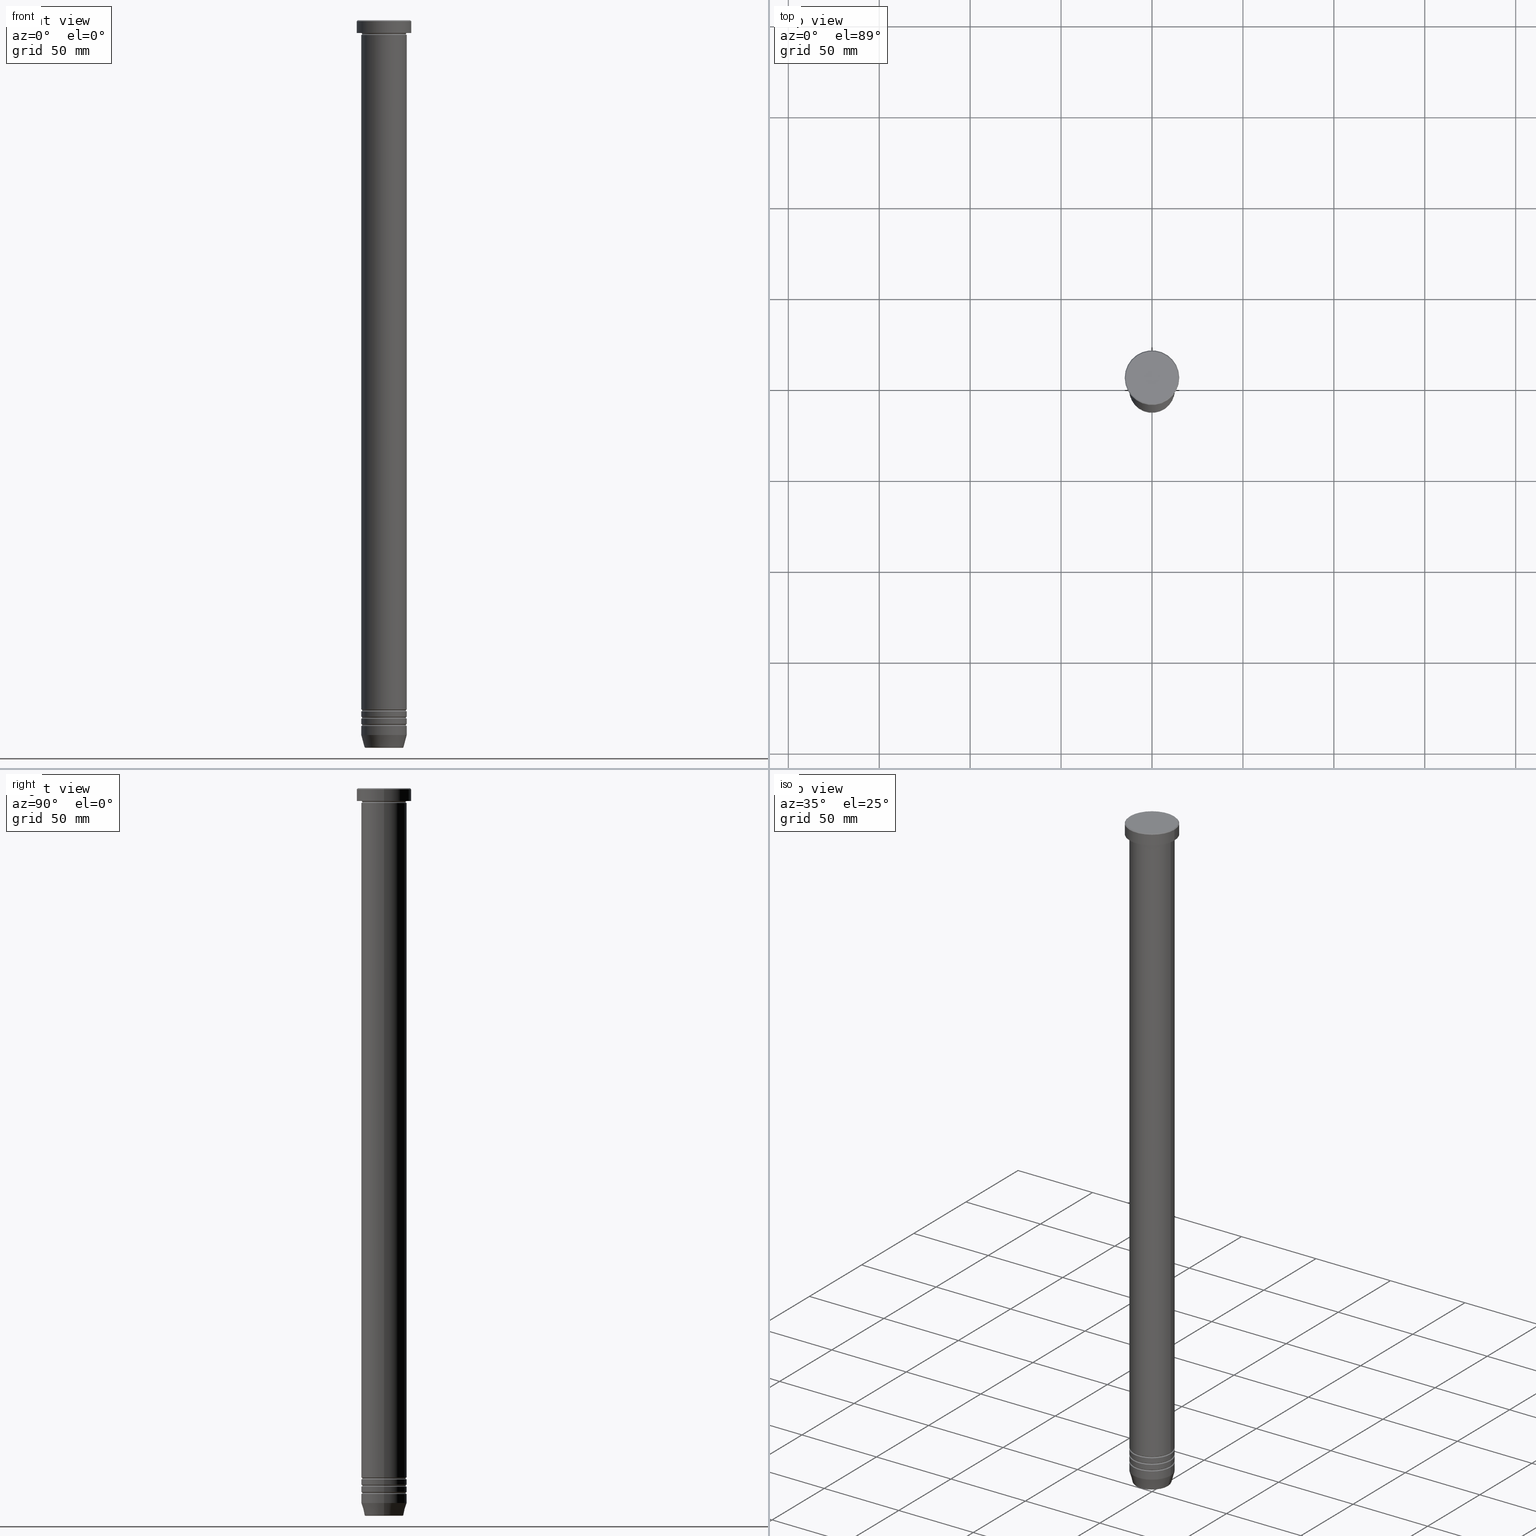
[diagram: canonical four-view strip — front | top / right | iso, engineering-drawing reading convention]
A machine part, canonical four-view strip (front | top / right | iso — engineering-drawing reading convention). The complete STEP part file that produces these views, byte-faithful:
ISO-10303-21;
HEADER;
FILE_DESCRIPTION (( 'STEP AP203' ),
    '1' );
FILE_NAME ('e450.STEP',
    '2024-01-02T20:23:32',
    ( '' ),
    ( '' ),
    'SwSTEP 2.0',
    'SolidWorks 2019',
    '' );
FILE_SCHEMA (( 'CONFIG_CONTROL_DESIGN' ));
ENDSEC;

DATA;
#1 = DIRECTION ( 'NONE',  ( 0.000000000000000000, 0.000000000000000000, -1.000000000000000000 ) ) ;
#2 = DIRECTION ( 'NONE',  ( -0.000000000000000000, -0.000000000000000000, 1.000000000000000000 ) ) ;
#3 = PERSON_AND_ORGANIZATION ( #878, #882 ) ;
#4 = CARTESIAN_POINT ( 'NONE',  ( 14.49999999999999645, 1.806354028742345802E-15, 0.000000000000000000 ) ) ;
#5 = CARTESIAN_POINT ( 'NONE',  ( 12.50000000000000000, 0.000000000000000000, 0.000000000000000000 ) ) ;
#6 = DIRECTION ( 'NONE',  ( 1.000000000000000000, 0.000000000000000000, 0.000000000000000000 ) ) ;
#7 = ORIENTED_EDGE ( 'NONE', *, *, #972, .F. ) ;
#8 = DIRECTION ( 'NONE',  ( 0.000000000000000000, 0.000000000000000000, -1.000000000000000000 ) ) ;
#9 = PRODUCT_RELATED_PRODUCT_CATEGORY ( 'detail', '', ( #984 ) ) ;
#10 = DIRECTION ( 'NONE',  ( 0.000000000000000000, 0.000000000000000000, -1.000000000000000000 ) ) ;
#11 = CIRCLE ( 'NONE', #604, 12.50000000000000000 ) ;
#12 = CARTESIAN_POINT ( 'NONE',  ( 0.000000000000000000, 0.000000000000000000, -387.5000000000000000 ) ) ;
#13 = AXIS2_PLACEMENT_3D ( 'NONE', #974, #573, #161 ) ;
#14 = AXIS2_PLACEMENT_3D ( 'NONE', #868, #461, #384 ) ;
#15 = DIRECTION ( 'NONE',  ( 1.000000000000000000, 0.000000000000000000, 0.000000000000000000 ) ) ;
#16 = DIRECTION ( 'NONE',  ( 1.000000000000000000, 0.000000000000000000, 0.000000000000000000 ) ) ;
#17 = ADVANCED_BREP_SHAPE_REPRESENTATION ( 'e450', ( #82, #644, #746 ), #32 ) ;
#18 = LINE ( 'NONE', #346, #341 ) ;
#19 = ORIENTED_EDGE ( 'NONE', *, *, #834, .T. ) ;
#20 = CARTESIAN_POINT ( 'NONE',  ( 0.000000000000000000, 15.00000000000000000, -6.999999999999999112 ) ) ;
#21 = CC_DESIGN_PERSON_AND_ORGANIZATION_ASSIGNMENT ( #3, #895, ( #563 ) ) ;
#22 = ORIENTED_EDGE ( 'NONE', *, *, #762, .T. ) ;
#23 = DIRECTION ( 'NONE',  ( 1.000000000000000000, 0.000000000000000000, 0.000000000000000000 ) ) ;
#24 = CARTESIAN_POINT ( 'NONE',  ( -15.00000000000000000, 1.836970198721029589E-15, -0.4999999999999970024 ) ) ;
#25 = ADVANCED_FACE ( 'NONE', ( #616 ), #172, .T. ) ;
#26 = AXIS2_PLACEMENT_3D ( 'NONE', #639, #611, #932 ) ;
#27 = EDGE_CURVE ( 'NONE', #648, #198, #483, .T. ) ;
#28 = CIRCLE ( 'NONE', #636, 12.50000000000000000 ) ;
#29 = FACE_OUTER_BOUND ( 'NONE', #353, .T. ) ;
#30 = AXIS2_PLACEMENT_3D ( 'NONE', #176, #978, #576 ) ;
#31 = ORIENTED_EDGE ( 'NONE', *, *, #745, .T. ) ;
#32 =( GEOMETRIC_REPRESENTATION_CONTEXT ( 3 ) GLOBAL_UNCERTAINTY_ASSIGNED_CONTEXT ( ( #624 ) ) GLOBAL_UNIT_ASSIGNED_CONTEXT ( ( #470, #303, #219 ) ) REPRESENTATION_CONTEXT ( 'NONE', 'WORKASPACE' ) );
#33 = ORIENTED_EDGE ( 'NONE', *, *, #1049, .T. ) ;
#34 = CARTESIAN_POINT ( 'NONE',  ( 0.000000000000000000, 0.000000000000000000, -400.0000000000000000 ) ) ;
#35 = ORIENTED_EDGE ( 'NONE', *, *, #964, .F. ) ;
#36 = DIRECTION ( 'NONE',  ( 0.000000000000000000, -1.000000000000000000, 0.000000000000000000 ) ) ;
#37 = DIRECTION ( 'NONE',  ( 1.000000000000000000, 0.000000000000000000, 0.000000000000000000 ) ) ;
#38 = VERTEX_POINT ( 'NONE', #714 ) ;
#39 = DIRECTION ( 'NONE',  ( 0.000000000000000000, -1.000000000000000000, 0.000000000000000000 ) ) ;
#40 = CARTESIAN_POINT ( 'NONE',  ( 0.000000000000000000, 0.000000000000000000, 0.000000000000000000 ) ) ;
#41 = DIRECTION ( 'NONE',  ( 1.000000000000000000, 0.000000000000000000, 0.000000000000000000 ) ) ;
#42 = ORIENTED_EDGE ( 'NONE', *, *, #90, .T. ) ;
#43 = APPROVAL_STATUS ( 'not_yet_approved' ) ;
#44 = AXIS2_PLACEMENT_3D ( 'NONE', #826, #747, #663 ) ;
#45 = TOROIDAL_SURFACE ( 'NONE', #425, 12.49999999999999645, 0.5000000000000000000 ) ;
#46 = ORIENTED_EDGE ( 'NONE', *, *, #301, .F. ) ;
#47 = CARTESIAN_POINT ( 'NONE',  ( 12.49999999999999645, 0.000000000000000000, -379.5000000000000000 ) ) ;
#48 = AXIS2_PLACEMENT_3D ( 'NONE', #848, #117, #431 ) ;
#49 = DIRECTION ( 'NONE',  ( -0.000000000000000000, -0.000000000000000000, 1.000000000000000000 ) ) ;
#50 = ORIENTED_EDGE ( 'NONE', *, *, #269, .T. ) ;
#51 = LINE ( 'NONE', #1039, #608 ) ;
#52 = EDGE_LOOP ( 'NONE', ( #141, #375, #1006, #838 ) ) ;
#53 = CARTESIAN_POINT ( 'NONE',  ( -12.50000000000000000, 1.530808498934191521E-15, -384.0000000000000000 ) ) ;
#54 = AXIS2_PLACEMENT_3D ( 'NONE', #1054, #558, #72 ) ;
#55 = DIRECTION ( 'NONE',  ( 1.000000000000000000, 0.000000000000000000, 0.000000000000000000 ) ) ;
#56 = EDGE_CURVE ( 'NONE', #872, #246, #634, .T. ) ;
#57 = EDGE_LOOP ( 'NONE', ( #214, #289 ) ) ;
#58 = ORIENTED_EDGE ( 'NONE', *, *, #135, .T. ) ;
#59 = FACE_OUTER_BOUND ( 'NONE', #333, .T. ) ;
#60 = VERTEX_POINT ( 'NONE', #498 ) ;
#61 = ADVANCED_FACE ( 'NONE', ( #149 ), #571, .T. ) ;
#62 = VERTEX_POINT ( 'NONE', #734 ) ;
#63 = DIRECTION ( 'NONE',  ( 1.000000000000000000, 0.000000000000000000, 0.000000000000000000 ) ) ;
#64 = AXIS2_PLACEMENT_3D ( 'NONE', #1004, #1013, #758 ) ;
#65 = AXIS2_PLACEMENT_3D ( 'NONE', #152, #472, #316 ) ;
#66 = AXIS2_PLACEMENT_3D ( 'NONE', #275, #670, #516 ) ;
#67 = APPLICATION_CONTEXT ( 'configuration controlled 3d designs of mechanical parts and assemblies' ) ;
#68 = APPROVAL_DATE_TIME ( #450, #1040 ) ;
#69 = VERTEX_POINT ( 'NONE', #332 ) ;
#70 = CARTESIAN_POINT ( 'NONE',  ( 0.000000000000000000, 0.000000000000000000, -7.500000000000000000 ) ) ;
#71 = EDGE_CURVE ( 'NONE', #136, #270, #153, .T. ) ;
#72 = DIRECTION ( 'NONE',  ( 1.000000000000000000, 0.000000000000000000, 0.000000000000000000 ) ) ;
#73 = DIRECTION ( 'NONE',  ( -0.000000000000000000, -0.000000000000000000, 1.000000000000000000 ) ) ;
#74 = ADVANCED_FACE ( 'NONE', ( #485 ), #968, .F. ) ;
#75 = CYLINDRICAL_SURFACE ( 'NONE', #863, 15.00000000000000000 ) ;
#76 = EDGE_CURVE ( 'NONE', #322, #62, #466, .T. ) ;
#77 = CALENDAR_DATE ( 2024, 2, 1 ) ;
#78 = EDGE_CURVE ( 'NONE', #38, #648, #888, .T. ) ;
#79 = DIRECTION ( 'NONE',  ( 1.000000000000000000, 0.000000000000000000, 0.000000000000000000 ) ) ;
#80 = EDGE_LOOP ( 'NONE', ( #601, #302, #955, #7 ) ) ;
#81 = LINE ( 'NONE', #5, #776 ) ;
#82 = MANIFOLD_SOLID_BREP ( 'Zkosen�1', #850 ) ;
#83 = CIRCLE ( 'NONE', #13, 12.00000000000000000 ) ;
#84 = CIRCLE ( 'NONE', #812, 0.5000000000000004441 ) ;
#85 = DIRECTION ( 'NONE',  ( -0.000000000000000000, -0.000000000000000000, 1.000000000000000000 ) ) ;
#86 = ORIENTED_EDGE ( 'NONE', *, *, #568, .T. ) ;
#87 = CARTESIAN_POINT ( 'NONE',  ( 0.000000000000000000, 0.000000000000000000, 0.000000000000000000 ) ) ;
#88 = DIRECTION ( 'NONE',  ( 1.000000000000000000, 0.000000000000000000, 0.000000000000000000 ) ) ;
#89 = CARTESIAN_POINT ( 'NONE',  ( -12.50000000000000000, 1.530808498934191521E-15, 0.000000000000000000 ) ) ;
#90 = EDGE_CURVE ( 'NONE', #442, #753, #785, .T. ) ;
#91 = EDGE_LOOP ( 'NONE', ( #35, #666, #800, #796 ) ) ;
#92 = CARTESIAN_POINT ( 'NONE',  ( 12.49999999999999289, 0.000000000000000000, -379.0000000000000000 ) ) ;
#93 = DIRECTION ( 'NONE',  ( -0.000000000000000000, -0.000000000000000000, 1.000000000000000000 ) ) ;
#94 = APPROVAL_ROLE ( '' ) ;
#95 = DIRECTION ( 'NONE',  ( 1.000000000000000000, 0.000000000000000000, 0.000000000000000000 ) ) ;
#96 = ORIENTED_EDGE ( 'NONE', *, *, #301, .T. ) ;
#97 = DIRECTION ( 'NONE',  ( -0.000000000000000000, -0.000000000000000000, 1.000000000000000000 ) ) ;
#98 = AXIS2_PLACEMENT_3D ( 'NONE', #47, #234, #299 ) ;
#99 = AXIS2_PLACEMENT_3D ( 'NONE', #849, #119, #854 ) ;
#100 = AXIS2_PLACEMENT_3D ( 'NONE', #501, #824, #421 ) ;
#101 = DIRECTION ( 'NONE',  ( -0.000000000000000000, -0.000000000000000000, 1.000000000000000000 ) ) ;
#102 = ADVANCED_FACE ( 'NONE', ( #652 ), #671, .T. ) ;
#103 = VERTEX_POINT ( 'NONE', #166 ) ;
#104 = DIRECTION ( 'NONE',  ( -0.000000000000000000, -0.000000000000000000, 1.000000000000000000 ) ) ;
#105 = DIRECTION ( 'NONE',  ( 0.000000000000000000, 0.000000000000000000, -1.000000000000000000 ) ) ;
#106 = EDGE_CURVE ( 'NONE', #816, #389, #424, .T. ) ;
#107 = EDGE_CURVE ( 'NONE', #322, #515, #944, .T. ) ;
#108 = ORIENTED_EDGE ( 'NONE', *, *, #1046, .F. ) ;
#109 = CARTESIAN_POINT ( 'NONE',  ( 0.000000000000000000, 0.000000000000000000, 0.000000000000000000 ) ) ;
#110 = ORIENTED_EDGE ( 'NONE', *, *, #56, .T. ) ;
#111 = DIRECTION ( 'NONE',  ( -0.000000000000000000, -0.000000000000000000, 1.000000000000000000 ) ) ;
#112 = ORIENTED_EDGE ( 'NONE', *, *, #139, .F. ) ;
#113 = CARTESIAN_POINT ( 'NONE',  ( 10.62435565298213547, 0.000000000000000000, -400.0000000000000000 ) ) ;
#114 = TOROIDAL_SURFACE ( 'NONE', #930, 12.49999999999999645, 0.5000000000000000000 ) ;
#115 = DIRECTION ( 'NONE',  ( -0.000000000000000000, -0.000000000000000000, 1.000000000000000000 ) ) ;
#116 = CARTESIAN_POINT ( 'NONE',  ( 0.000000000000000000, 0.000000000000000000, -383.5000000000000000 ) ) ;
#117 = DIRECTION ( 'NONE',  ( 0.000000000000000000, 0.000000000000000000, -1.000000000000000000 ) ) ;
#118 = EDGE_LOOP ( 'NONE', ( #492, #952, #768, #476 ) ) ;
#119 = DIRECTION ( 'NONE',  ( -0.000000000000000000, -0.000000000000000000, 1.000000000000000000 ) ) ;
#120 = DIRECTION ( 'NONE',  ( -1.000000000000000000, 1.224646799147353454E-16, 0.000000000000000000 ) ) ;
#121 = ORIENTED_EDGE ( 'NONE', *, *, #164, .T. ) ;
#122 = ORIENTED_EDGE ( 'NONE', *, *, #713, .T. ) ;
#123 = DIRECTION ( 'NONE',  ( 0.000000000000000000, 0.000000000000000000, -1.000000000000000000 ) ) ;
#124 = ADVANCED_FACE ( 'NONE', ( #957 ), #1018, .F. ) ;
#125 = CARTESIAN_POINT ( 'NONE',  ( 12.50000000000000000, 1.530808498934191521E-15, -6.999999999999999112 ) ) ;
#126 = ORIENTED_EDGE ( 'NONE', *, *, #27, .F. ) ;
#127 = DIRECTION ( 'NONE',  ( -0.000000000000000000, -0.000000000000000000, 1.000000000000000000 ) ) ;
#128 = AXIS2_PLACEMENT_3D ( 'NONE', #507, #343, #989 ) ;
#129 = ORIENTED_EDGE ( 'NONE', *, *, #718, .T. ) ;
#130 = DIRECTION ( 'NONE',  ( 0.000000000000000000, 0.000000000000000000, -1.000000000000000000 ) ) ;
#131 = CIRCLE ( 'NONE', #242, 12.49999999999999822 ) ;
#132 = VECTOR ( 'NONE', #363, 1000.000000000000000 ) ;
#133 = CARTESIAN_POINT ( 'NONE',  ( 0.000000000000000000, 0.000000000000000000, -6.999999999999999112 ) ) ;
#134 = ORIENTED_EDGE ( 'NONE', *, *, #107, .F. ) ;
#135 = EDGE_CURVE ( 'NONE', #1052, #465, #723, .T. ) ;
#136 = VERTEX_POINT ( 'NONE', #125 ) ;
#137 = FACE_OUTER_BOUND ( 'NONE', #118, .T. ) ;
#138 = CARTESIAN_POINT ( 'NONE',  ( -12.49999999999999645, 1.530808498934191127E-15, -383.5000000000000000 ) ) ;
#139 = EDGE_CURVE ( 'NONE', #348, #979, #368, .T. ) ;
#140 = ORIENTED_EDGE ( 'NONE', *, *, #288, .T. ) ;
#141 = ORIENTED_EDGE ( 'NONE', *, *, #255, .F. ) ;
#142 = APPROVAL_ROLE ( '' ) ;
#143 = VERTEX_POINT ( 'NONE', #1033 ) ;
#144 = CARTESIAN_POINT ( 'NONE',  ( 0.000000000000000000, 0.000000000000000000, 0.000000000000000000 ) ) ;
#145 = AXIS2_PLACEMENT_3D ( 'NONE', #314, #630, #480 ) ;
#146 = CIRCLE ( 'NONE', #338, 14.49999999999999645 ) ;
#147 = CIRCLE ( 'NONE', #562, 12.00000000000000000 ) ;
#148 = AXIS2_PLACEMENT_3D ( 'NONE', #540, #613, #789 ) ;
#149 = FACE_OUTER_BOUND ( 'NONE', #469, .T. ) ;
#150 = DATE_AND_TIME ( #640, #916 ) ;
#151 = EDGE_CURVE ( 'NONE', #60, #430, #861, .T. ) ;
#152 = CARTESIAN_POINT ( 'NONE',  ( 0.000000000000000000, 3.469446951953614189E-15, -80.00000000000000000 ) ) ;
#153 = CIRCLE ( 'NONE', #383, 12.50000000000000000 ) ;
#154 = PERSON_AND_ORGANIZATION_ROLE ( 'classification_officer' ) ;
#155 = DIRECTION ( 'NONE',  ( -0.000000000000000000, -0.000000000000000000, 1.000000000000000000 ) ) ;
#156 = CARTESIAN_POINT ( 'NONE',  ( 0.000000000000000000, 0.000000000000000000, -383.0000000000000000 ) ) ;
#157 = CARTESIAN_POINT ( 'NONE',  ( 0.000000000000000000, 0.000000000000000000, -6.999999999999998224 ) ) ;
#158 = PERSON_AND_ORGANIZATION_ROLE ( 'design_supplier' ) ;
#159 = ORIENTED_EDGE ( 'NONE', *, *, #184, .F. ) ;
#160 = CARTESIAN_POINT ( 'NONE',  ( -11.99999999999999645, 1.500192328955507143E-15, -387.5000000000000000 ) ) ;
#161 = DIRECTION ( 'NONE',  ( 1.000000000000000000, 0.000000000000000000, 0.000000000000000000 ) ) ;
#162 = CIRCLE ( 'NONE', #740, 12.50000000000000000 ) ;
#163 = AXIS2_PLACEMENT_3D ( 'NONE', #347, #899, #667 ) ;
#164 = EDGE_CURVE ( 'NONE', #430, #60, #908, .T. ) ;
#165 = VECTOR ( 'NONE', #727, 1000.000000000000000 ) ;
#166 = CARTESIAN_POINT ( 'NONE',  ( -12.50000000000000000, 1.530808498934191521E-15, -80.00000000000000000 ) ) ;
#167 = APPROVAL_PERSON_ORGANIZATION ( #232, #1040, #142 ) ;
#168 = DATE_TIME_ROLE ( 'classification_date' ) ;
#169 = ORIENTED_EDGE ( 'NONE', *, *, #990, .F. ) ;
#170 = DIRECTION ( 'NONE',  ( -0.000000000000000000, -0.000000000000000000, 1.000000000000000000 ) ) ;
#171 = CARTESIAN_POINT ( 'NONE',  ( 0.000000000000000000, 0.000000000000000000, -80.00000000000000000 ) ) ;
#172 = CONICAL_SURFACE ( 'NONE', #799, 14.49999999999999645, 0.7853981633974533860 ) ;
#173 = CYLINDRICAL_SURFACE ( 'NONE', #1002, 12.50000000000000000 ) ;
#174 = DIRECTION ( 'NONE',  ( -0.000000000000000000, -1.000000000000000000, -0.000000000000000000 ) ) ;
#175 = ORIENTED_EDGE ( 'NONE', *, *, #489, .T. ) ;
#176 = CARTESIAN_POINT ( 'NONE',  ( 0.000000000000000000, 0.000000000000000000, -393.0000000000000000 ) ) ;
#177 = CC_DESIGN_DATE_AND_TIME_ASSIGNMENT ( #958, #237, ( #633 ) ) ;
#178 = CARTESIAN_POINT ( 'NONE',  ( 0.000000000000000000, 4.286263797015736496E-14, -400.0000000000000000 ) ) ;
#179 = AXIS2_PLACEMENT_3D ( 'NONE', #230, #1048, #623 ) ;
#180 = AXIS2_PLACEMENT_3D ( 'NONE', #595, #104, #933 ) ;
#181 = AXIS2_PLACEMENT_3D ( 'NONE', #617, #127, #938 ) ;
#182 = ORIENTED_EDGE ( 'NONE', *, *, #106, .F. ) ;
#183 = FACE_OUTER_BOUND ( 'NONE', #266, .T. ) ;
#184 = EDGE_CURVE ( 'NONE', #481, #270, #404, .T. ) ;
#185 = CYLINDRICAL_SURFACE ( 'NONE', #1022, 12.50000000000000000 ) ;
#186 = EDGE_CURVE ( 'NONE', #62, #510, #982, .T. ) ;
#187 = ORIENTED_EDGE ( 'NONE', *, *, #891, .F. ) ;
#188 = DIRECTION ( 'NONE',  ( -0.000000000000000000, -1.000000000000000000, -0.000000000000000000 ) ) ;
#189 = VECTOR ( 'NONE', #967, 1000.000000000000000 ) ;
#190 = ORIENTED_EDGE ( 'NONE', *, *, #592, .F. ) ;
#191 = CARTESIAN_POINT ( 'NONE',  ( 0.000000000000000000, 0.000000000000000000, -399.5000000000000000 ) ) ;
#192 = ORIENTED_EDGE ( 'NONE', *, *, #250, .T. ) ;
#193 = CARTESIAN_POINT ( 'NONE',  ( 0.000000000000000000, 0.000000000000000000, -399.5000000000000000 ) ) ;
#194 = ORIENTED_EDGE ( 'NONE', *, *, #513, .F. ) ;
#195 = FACE_OUTER_BOUND ( 'NONE', #447, .T. ) ;
#196 = EDGE_CURVE ( 'NONE', #62, #322, #220, .T. ) ;
#197 = AXIS2_PLACEMENT_3D ( 'NONE', #484, #542, #772 ) ;
#198 = VERTEX_POINT ( 'NONE', #526 ) ;
#199 = AXIS2_PLACEMENT_3D ( 'NONE', #600, #115, #443 ) ;
#200 = DIRECTION ( 'NONE',  ( -1.000000000000000000, 0.000000000000000000, 0.000000000000000000 ) ) ;
#201 = AXIS2_PLACEMENT_3D ( 'NONE', #801, #130, #712 ) ;
#202 = EDGE_CURVE ( 'NONE', #736, #218, #524, .T. ) ;
#203 = ORIENTED_EDGE ( 'NONE', *, *, #378, .F. ) ;
#204 = DIRECTION ( 'NONE',  ( 1.000000000000000000, 0.000000000000000000, 0.000000000000000000 ) ) ;
#205 = CIRCLE ( 'NONE', #690, 0.5000000000000004441 ) ;
#206 = DIRECTION ( 'NONE',  ( 1.000000000000000000, 0.000000000000000000, 0.000000000000000000 ) ) ;
#207 = ORIENTED_EDGE ( 'NONE', *, *, #1060, .F. ) ;
#208 = ADVANCED_FACE ( 'NONE', ( #462 ), #337, .F. ) ;
#209 = DIRECTION ( 'NONE',  ( 1.000000000000000000, 0.000000000000000000, 0.000000000000000000 ) ) ;
#210 = ORIENTED_EDGE ( 'NONE', *, *, #1049, .F. ) ;
#211 = CARTESIAN_POINT ( 'NONE',  ( 10.24069215899265828, 0.000000000000000000, -399.5000000000000000 ) ) ;
#212 = ORIENTED_EDGE ( 'NONE', *, *, #410, .T. ) ;
#213 = DIRECTION ( 'NONE',  ( -0.000000000000000000, -0.000000000000000000, 1.000000000000000000 ) ) ;
#214 = ORIENTED_EDGE ( 'NONE', *, *, #90, .F. ) ;
#215 = EDGE_CURVE ( 'NONE', #293, #69, #926, .T. ) ;
#216 = CARTESIAN_POINT ( 'NONE',  ( 0.000000000000000000, 0.000000000000000000, -399.6294095225512706 ) ) ;
#217 = CARTESIAN_POINT ( 'NONE',  ( 0.000000000000000000, 0.000000000000000000, -388.0000000000000000 ) ) ;
#218 = VERTEX_POINT ( 'NONE', #935 ) ;
#219 =( NAMED_UNIT ( * ) SI_UNIT ( $, .STERADIAN. ) SOLID_ANGLE_UNIT ( ) );
#220 = CIRCLE ( 'NONE', #809, 10.24069215899265828 ) ;
#221 = CONICAL_SURFACE ( 'NONE', #945, 14.49999999999999645, 0.7853981633974533860 ) ;
#222 = EDGE_LOOP ( 'NONE', ( #121, #122, #175, #970 ) ) ;
#223 = DIRECTION ( 'NONE',  ( 1.000000000000000000, 0.000000000000000000, 0.000000000000000000 ) ) ;
#224 = ADVANCED_FACE ( 'NONE', ( #385 ), #533, .T. ) ;
#225 = CIRCLE ( 'NONE', #527, 14.49999999999999645 ) ;
#226 = CIRCLE ( 'NONE', #528, 0.5000000000000004441 ) ;
#227 = DIRECTION ( 'NONE',  ( 0.000000000000000000, -1.000000000000000000, 0.000000000000000000 ) ) ;
#228 = ORIENTED_EDGE ( 'NONE', *, *, #731, .T. ) ;
#229 = CARTESIAN_POINT ( 'NONE',  ( 0.000000000000000000, 0.000000000000000000, -384.0000000000000000 ) ) ;
#230 = CARTESIAN_POINT ( 'NONE',  ( 0.000000000000000000, 0.000000000000000000, -80.00000000000000000 ) ) ;
#231 = ORIENTED_EDGE ( 'NONE', *, *, #196, .F. ) ;
#232 = PERSON_AND_ORGANIZATION ( #878, #882 ) ;
#233 = ORIENTED_EDGE ( 'NONE', *, *, #1027, .T. ) ;
#234 = DIRECTION ( 'NONE',  ( 0.000000000000000000, -1.000000000000000000, 0.000000000000000000 ) ) ;
#235 = EDGE_CURVE ( 'NONE', #198, #648, #11, .T. ) ;
#236 = DIRECTION ( 'NONE',  ( -1.000000000000000000, 0.000000000000000000, 0.000000000000000000 ) ) ;
#237 = DATE_TIME_ROLE ( 'creation_date' ) ;
#238 = PLANE ( 'NONE',  #1059 ) ;
#239 = CIRCLE ( 'NONE', #128, 12.49999999999999289 ) ;
#240 = CIRCLE ( 'NONE', #372, 0.5000000000000004441 ) ;
#241 = DESIGN_CONTEXT ( 'detailed design', #67, 'design' ) ;
#242 = AXIS2_PLACEMENT_3D ( 'NONE', #342, #572, #584 ) ;
#243 = CIRCLE ( 'NONE', #181, 12.50000000000000000 ) ;
#244 = CARTESIAN_POINT ( 'NONE',  ( 0.000000000000000000, 0.000000000000000000, -387.5000000000000000 ) ) ;
#245 = COORDINATED_UNIVERSAL_TIME_OFFSET ( 1, 0, .AHEAD. ) ;
#246 = VERTEX_POINT ( 'NONE', #361 ) ;
#247 = DIRECTION ( 'NONE',  ( -1.224646799147353207E-16, 1.000000000000000000, 0.000000000000000000 ) ) ;
#248 = ORIENTED_EDGE ( 'NONE', *, *, #950, .T. ) ;
#249 = FACE_OUTER_BOUND ( 'NONE', #91, .T. ) ;
#250 = EDGE_CURVE ( 'NONE', #270, #136, #162, .T. ) ;
#251 = CARTESIAN_POINT ( 'NONE',  ( 12.49999999999999645, 1.530808498934191127E-15, -379.5000000000000000 ) ) ;
#252 = ADVANCED_FACE ( 'NONE', ( #1037 ), #655, .F. ) ;
#253 = EDGE_LOOP ( 'NONE', ( #948, #129, #890, #503 ) ) ;
#254 = PLANE ( 'NONE',  #929 ) ;
#255 = EDGE_CURVE ( 'NONE', #38, #293, #960, .T. ) ;
#256 = DIRECTION ( 'NONE',  ( 1.000000000000000000, 0.000000000000000000, 0.000000000000000000 ) ) ;
#257 = ORIENTED_EDGE ( 'NONE', *, *, #534, .T. ) ;
#258 = CARTESIAN_POINT ( 'NONE',  ( 0.000000000000000000, 0.000000000000000000, -379.5000000000000000 ) ) ;
#259 = FACE_OUTER_BOUND ( 'NONE', #57, .T. ) ;
#260 = AXIS2_PLACEMENT_3D ( 'NONE', #884, #264, #1050 ) ;
#261 = ADVANCED_FACE ( 'NONE', ( #846 ), #75, .T. ) ;
#262 = AXIS2_PLACEMENT_3D ( 'NONE', #808, #97, #892 ) ;
#263 = AXIS2_PLACEMENT_3D ( 'NONE', #586, #247, #654 ) ;
#264 = DIRECTION ( 'NONE',  ( -0.000000000000000000, -0.000000000000000000, 1.000000000000000000 ) ) ;
#265 = CIRCLE ( 'NONE', #66, 10.72365507213719305 ) ;
#266 = EDGE_LOOP ( 'NONE', ( #371, #680, #874, #284 ) ) ;
#267 = DIRECTION ( 'NONE',  ( -1.224646799147353207E-16, 1.000000000000000000, 0.000000000000000000 ) ) ;
#268 = CARTESIAN_POINT ( 'NONE',  ( -10.24069215899265828, 1.283696036640842573E-15, -400.0000000000000000 ) ) ;
#269 = EDGE_CURVE ( 'NONE', #552, #852, #146, .T. ) ;
#270 = VERTEX_POINT ( 'NONE', #851 ) ;
#271 = CARTESIAN_POINT ( 'NONE',  ( -12.50000000000000000, 1.530808498934191521E-15, 0.000000000000000000 ) ) ;
#272 = ORIENTED_EDGE ( 'NONE', *, *, #592, .T. ) ;
#273 = PLANE ( 'NONE',  #985 ) ;
#274 = EDGE_CURVE ( 'NONE', #389, #103, #369, .T. ) ;
#275 = CARTESIAN_POINT ( 'NONE',  ( 0.000000000000000000, 0.000000000000000000, -399.6294095225512706 ) ) ;
#276 = ORIENTED_EDGE ( 'NONE', *, *, #135, .F. ) ;
#277 = CARTESIAN_POINT ( 'NONE',  ( 0.000000000000000000, 0.000000000000000000, -7.500000000000000000 ) ) ;
#278 = EDGE_CURVE ( 'NONE', #143, #979, #81, .T. ) ;
#279 = AXIS2_PLACEMENT_3D ( 'NONE', #191, #432, #376 ) ;
#280 = AXIS2_PLACEMENT_3D ( 'NONE', #873, #628, #223 ) ;
#281 = DIRECTION ( 'NONE',  ( -0.000000000000000000, -0.000000000000000000, 1.000000000000000000 ) ) ;
#282 = ORIENTED_EDGE ( 'NONE', *, *, #519, .F. ) ;
#283 = DIRECTION ( 'NONE',  ( 0.000000000000000000, 0.000000000000000000, -1.000000000000000000 ) ) ;
#284 = ORIENTED_EDGE ( 'NONE', *, *, #412, .F. ) ;
#285 = DIRECTION ( 'NONE',  ( -1.000000000000000000, 1.224646799147353454E-16, 0.000000000000000000 ) ) ;
#286 = CARTESIAN_POINT ( 'NONE',  ( -12.00000000000000000, 1.500192328955507734E-15, -7.500000000000000000 ) ) ;
#287 = ADVANCED_FACE ( 'NONE', ( #903 ), #706, .F. ) ;
#288 = EDGE_CURVE ( 'NONE', #1047, #103, #543, .T. ) ;
#289 = ORIENTED_EDGE ( 'NONE', *, *, #752, .F. ) ;
#290 = CYLINDRICAL_SURFACE ( 'NONE', #988, 12.50000000000000000 ) ;
#291 = CARTESIAN_POINT ( 'NONE',  ( -12.50000000000000000, 1.530808498934191521E-15, -393.0000000000000000 ) ) ;
#292 = DIRECTION ( 'NONE',  ( 1.000000000000000000, 0.000000000000000000, 0.000000000000000000 ) ) ;
#293 = VERTEX_POINT ( 'NONE', #661 ) ;
#294 = VECTOR ( 'NONE', #502, 1000.000000000000000 ) ;
#295 = CARTESIAN_POINT ( 'NONE',  ( 10.72365507213719305, 0.000000000000000000, -399.6294095225512706 ) ) ;
#296 = TOROIDAL_SURFACE ( 'NONE', #658, 10.24069215899265828, 0.5000000000000000000 ) ;
#297 = EDGE_LOOP ( 'NONE', ( #909, #900, #977, #203 ) ) ;
#298 = CYLINDRICAL_SURFACE ( 'NONE', #931, 12.49999999999999645 ) ;
#299 = DIRECTION ( 'NONE',  ( 0.000000000000000000, 0.000000000000000000, -1.000000000000000000 ) ) ;
#300 = DIRECTION ( 'NONE',  ( 0.000000000000000000, -1.000000000000000000, 0.000000000000000000 ) ) ;
#301 = EDGE_CURVE ( 'NONE', #648, #1035, #621, .T. ) ;
#302 = ORIENTED_EDGE ( 'NONE', *, *, #629, .T. ) ;
#303 =( NAMED_UNIT ( * ) PLANE_ANGLE_UNIT ( ) SI_UNIT ( $, .RADIAN. ) );
#304 = DIRECTION ( 'NONE',  ( 0.000000000000000000, 0.000000000000000000, -1.000000000000000000 ) ) ;
#305 = ORIENTED_EDGE ( 'NONE', *, *, #829, .F. ) ;
#306 = CARTESIAN_POINT ( 'NONE',  ( -11.99999999999999645, 1.500192328955507143E-15, -379.5000000000000000 ) ) ;
#307 = AXIS2_PLACEMENT_3D ( 'NONE', #865, #783, #457 ) ;
#308 = CIRCLE ( 'NONE', #1058, 0.5000000000000004441 ) ;
#309 = DIRECTION ( 'NONE',  ( -1.000000000000000000, -1.224646799147353454E-16, 0.000000000000000000 ) ) ;
#310 = CIRCLE ( 'NONE', #687, 12.49999999999999289 ) ;
#311 = CC_DESIGN_APPROVAL ( #537, ( #835 ) ) ;
#312 = ORIENTED_EDGE ( 'NONE', *, *, #745, .F. ) ;
#313 = FACE_OUTER_BOUND ( 'NONE', #719, .T. ) ;
#314 = CARTESIAN_POINT ( 'NONE',  ( -10.24069215899265828, 1.254123087356375833E-15, -399.5000000000000000 ) ) ;
#315 = CALENDAR_DATE ( 2024, 2, 1 ) ;
#316 = DIRECTION ( 'NONE',  ( -1.000000000000000000, 0.000000000000000000, -0.000000000000000000 ) ) ;
#317 = DIRECTION ( 'NONE',  ( 1.000000000000000000, 0.000000000000000000, 0.000000000000000000 ) ) ;
#318 = PERSON_AND_ORGANIZATION ( #878, #882 ) ;
#319 = AXIS2_PLACEMENT_3D ( 'NONE', #700, #402, #722 ) ;
#320 = CARTESIAN_POINT ( 'NONE',  ( 12.49999999999999822, 0.000000000000000000, -383.0000000000000000 ) ) ;
#321 = AXIS2_PLACEMENT_3D ( 'NONE', #570, #822, #88 ) ;
#322 = VERTEX_POINT ( 'NONE', #268 ) ;
#323 = DIRECTION ( 'NONE',  ( 0.000000000000000000, 0.000000000000000000, -1.000000000000000000 ) ) ;
#324 = CIRCLE ( 'NONE', #479, 0.5000000000000004441 ) ;
#325 = CARTESIAN_POINT ( 'NONE',  ( 0.000000000000000000, 0.000000000000000000, -6.999999999999998224 ) ) ;
#326 = ORIENTED_EDGE ( 'NONE', *, *, #235, .T. ) ;
#327 = DIRECTION ( 'NONE',  ( 1.000000000000000000, 0.000000000000000000, 0.000000000000000000 ) ) ;
#328 = AXIS2_PLACEMENT_3D ( 'NONE', #157, #411, #317 ) ;
#329 = CARTESIAN_POINT ( 'NONE',  ( 0.000000000000000000, 0.000000000000000000, -384.0000000000000000 ) ) ;
#330 = ADVANCED_FACE ( 'NONE', ( #995 ), #254, .F. ) ;
#331 = CARTESIAN_POINT ( 'NONE',  ( -12.49999999999999645, 0.000000000000000000, -379.5000000000000000 ) ) ;
#332 = CARTESIAN_POINT ( 'NONE',  ( 11.99999999999999645, 0.000000000000000000, -383.5000000000000000 ) ) ;
#333 = EDGE_LOOP ( 'NONE', ( #140, #1030 ) ) ;
#334 = CARTESIAN_POINT ( 'NONE',  ( 0.000000000000000000, 0.000000000000000000, -7.500000000000000000 ) ) ;
#335 = CARTESIAN_POINT ( 'NONE',  ( 12.49999999999999645, 0.000000000000000000, 0.000000000000000000 ) ) ;
#336 = EDGE_CURVE ( 'NONE', #442, #1052, #887, .T. ) ;
#337 = TOROIDAL_SURFACE ( 'NONE', #26, 12.49999999999999645, 0.5000000000000000000 ) ;
#338 = AXIS2_PLACEMENT_3D ( 'NONE', #681, #606, #206 ) ;
#339 = CIRCLE ( 'NONE', #180, 12.50000000000000000 ) ;
#340 = DIRECTION ( 'NONE',  ( 0.000000000000000000, 0.000000000000000000, -1.000000000000000000 ) ) ;
#341 = VECTOR ( 'NONE', #911, 1000.000000000000000 ) ;
#342 = CARTESIAN_POINT ( 'NONE',  ( 0.000000000000000000, 0.000000000000000000, -383.0000000000000000 ) ) ;
#343 = DIRECTION ( 'NONE',  ( -0.000000000000000000, -0.000000000000000000, 1.000000000000000000 ) ) ;
#344 = EDGE_CURVE ( 'NONE', #711, #716, #239, .T. ) ;
#345 = ADVANCED_FACE ( 'NONE', ( #407 ), #827, .F. ) ;
#346 = CARTESIAN_POINT ( 'NONE',  ( 14.49999999999999645, 1.775737858763661620E-15, 0.000000000000000000 ) ) ;
#347 = CARTESIAN_POINT ( 'NONE',  ( 0.000000000000000000, 0.000000000000000000, -80.00000000000000000 ) ) ;
#348 = VERTEX_POINT ( 'NONE', #414 ) ;
#349 = CARTESIAN_POINT ( 'NONE',  ( 12.49999999999999645, 0.000000000000000000, -383.5000000000000000 ) ) ;
#350 = CARTESIAN_POINT ( 'NONE',  ( 0.000000000000000000, 0.000000000000000000, -387.5000000000000000 ) ) ;
#351 = TOROIDAL_SURFACE ( 'NONE', #910, 12.50000000000000000, 0.5000000000000000000 ) ;
#352 = AXIS2_PLACEMENT_3D ( 'NONE', #144, #797, #1036 ) ;
#353 = EDGE_LOOP ( 'NONE', ( #233, #228, #19, #305 ) ) ;
#354 = CARTESIAN_POINT ( 'NONE',  ( 12.50000000000000000, 0.000000000000000000, -393.0000000000000000 ) ) ;
#355 = ADVANCED_FACE ( 'NONE', ( #817 ), #221, .T. ) ;
#356 = CYLINDRICAL_SURFACE ( 'NONE', #64, 15.00000000000000000 ) ;
#357 = EDGE_LOOP ( 'NONE', ( #917, #883, #248, #445 ) ) ;
#358 = DIRECTION ( 'NONE',  ( 0.000000000000000000, 0.000000000000000000, -1.000000000000000000 ) ) ;
#359 = ORIENTED_EDGE ( 'NONE', *, *, #767, .F. ) ;
#360 = DIRECTION ( 'NONE',  ( 0.000000000000000000, 0.000000000000000000, -1.000000000000000000 ) ) ;
#361 = CARTESIAN_POINT ( 'NONE',  ( -12.50000000000000000, 1.530808498934191521E-15, -8.000000000000000000 ) ) ;
#362 = ORIENTED_EDGE ( 'NONE', *, *, #269, .F. ) ;
#363 = DIRECTION ( 'NONE',  ( -0.000000000000000000, -0.000000000000000000, 1.000000000000000000 ) ) ;
#364 = ORIENTED_EDGE ( 'NONE', *, *, #632, .T. ) ;
#365 = DIRECTION ( 'NONE',  ( 1.000000000000000000, 0.000000000000000000, 0.000000000000000000 ) ) ;
#366 = EDGE_CURVE ( 'NONE', #749, #38, #508, .T. ) ;
#367 = ADVANCED_FACE ( 'NONE', ( #832, #259 ), #273, .T. ) ;
#368 = CIRCLE ( 'NONE', #653, 0.5000000000000004441 ) ;
#369 = LINE ( 'NONE', #688, #686 ) ;
#370 = CIRCLE ( 'NONE', #163, 12.50000000000000000 ) ;
#371 = ORIENTED_EDGE ( 'NONE', *, *, #106, .T. ) ;
#372 = AXIS2_PLACEMENT_3D ( 'NONE', #1055, #497, #821 ) ;
#373 = APPROVAL_ROLE ( '' ) ;
#374 = LOCAL_TIME ( 21, 23, 32.00000000000000000, #804 ) ;
#375 = ORIENTED_EDGE ( 'NONE', *, *, #366, .F. ) ;
#376 = DIRECTION ( 'NONE',  ( 1.000000000000000000, 0.000000000000000000, 0.000000000000000000 ) ) ;
#377 = APPROVAL_PERSON_ORGANIZATION ( #976, #537, #94 ) ;
#378 = EDGE_CURVE ( 'NONE', #103, #1047, #370, .T. ) ;
#379 = CARTESIAN_POINT ( 'NONE',  ( 0.000000000000000000, 0.000000000000000000, -380.0000000000000000 ) ) ;
#380 = ADVANCED_FACE ( 'NONE', ( #249 ), #811, .F. ) ;
#381 = DIRECTION ( 'NONE',  ( -0.000000000000000000, -0.000000000000000000, 1.000000000000000000 ) ) ;
#382 = ORIENTED_EDGE ( 'NONE', *, *, #186, .F. ) ;
#383 = AXIS2_PLACEMENT_3D ( 'NONE', #983, #810, #236 ) ;
#384 = DIRECTION ( 'NONE',  ( 1.000000000000000000, 0.000000000000000000, 0.000000000000000000 ) ) ;
#385 = FACE_OUTER_BOUND ( 'NONE', #297, .T. ) ;
#386 = ORIENTED_EDGE ( 'NONE', *, *, #969, .F. ) ;
#387 = ORIENTED_EDGE ( 'NONE', *, *, #767, .T. ) ;
#388 = CARTESIAN_POINT ( 'NONE',  ( 0.000000000000000000, 0.000000000000000000, 0.000000000000000000 ) ) ;
#389 = VERTEX_POINT ( 'NONE', #645 ) ;
#390 = DIRECTION ( 'NONE',  ( 0.000000000000000000, 0.000000000000000000, 1.000000000000000000 ) ) ;
#391 = AXIS2_PLACEMENT_3D ( 'NONE', #12, #340, #904 ) ;
#392 = ORIENTED_EDGE ( 'NONE', *, *, #972, .T. ) ;
#393 = FACE_OUTER_BOUND ( 'NONE', #529, .T. ) ;
#394 = AXIS2_PLACEMENT_3D ( 'NONE', #329, #155, #660 ) ;
#395 = VECTOR ( 'NONE', #842, 1000.000000000000000 ) ;
#396 = DIRECTION ( 'NONE',  ( 1.000000000000000000, 0.000000000000000000, 0.000000000000000000 ) ) ;
#397 = PERSON_AND_ORGANIZATION ( #878, #882 ) ;
#398 = PLANE ( 'NONE',  #65 ) ;
#399 = EDGE_CURVE ( 'NONE', #481, #348, #83, .T. ) ;
#400 = PERSON_AND_ORGANIZATION ( #878, #882 ) ;
#401 = DIRECTION ( 'NONE',  ( -0.000000000000000000, -0.000000000000000000, 1.000000000000000000 ) ) ;
#402 = DIRECTION ( 'NONE',  ( -0.000000000000000000, -0.000000000000000000, 1.000000000000000000 ) ) ;
#403 = ORIENTED_EDGE ( 'NONE', *, *, #1027, .F. ) ;
#404 = CIRCLE ( 'NONE', #197, 0.5000000000000004441 ) ;
#405 = LINE ( 'NONE', #271, #165 ) ;
#406 = AXIS2_PLACEMENT_3D ( 'NONE', #620, #550, #869 ) ;
#407 = FACE_OUTER_BOUND ( 'NONE', #222, .T. ) ;
#408 = AXIS2_PLACEMENT_3D ( 'NONE', #70, #73, #693 ) ;
#409 = APPROVAL_PERSON_ORGANIZATION ( #774, #581, #373 ) ;
#410 = EDGE_CURVE ( 'NONE', #749, #198, #493, .T. ) ;
#411 = DIRECTION ( 'NONE',  ( -0.000000000000000000, -0.000000000000000000, 1.000000000000000000 ) ) ;
#412 = EDGE_CURVE ( 'NONE', #816, #1047, #418, .T. ) ;
#413 = DIRECTION ( 'NONE',  ( -0.000000000000000000, -1.000000000000000000, -0.000000000000000000 ) ) ;
#414 = CARTESIAN_POINT ( 'NONE',  ( 12.00000000000000000, 0.000000000000000000, -7.500000000000000000 ) ) ;
#415 = ADVANCED_FACE ( 'NONE', ( #915 ), #577, .T. ) ;
#416 = EDGE_LOOP ( 'NONE', ( #841, #326, #96, #31 ) ) ;
#417 = CARTESIAN_POINT ( 'NONE',  ( 0.000000000000000000, 0.000000000000000000, -383.5000000000000000 ) ) ;
#418 = LINE ( 'NONE', #335, #742 ) ;
#419 = DATE_AND_TIME ( #77, #374 ) ;
#420 = ORIENTED_EDGE ( 'NONE', *, *, #565, .F. ) ;
#421 = DIRECTION ( 'NONE',  ( -1.000000000000000000, -1.224646799147353454E-16, 0.000000000000000000 ) ) ;
#422 = CC_DESIGN_PERSON_AND_ORGANIZATION_ASSIGNMENT ( #397, #715, ( #633 ) ) ;
#423 = CARTESIAN_POINT ( 'NONE',  ( 15.00000000000000000, 0.000000000000000000, 0.000000000000000000 ) ) ;
#424 = CIRCLE ( 'NONE', #260, 12.49999999999999289 ) ;
#425 = AXIS2_PLACEMENT_3D ( 'NONE', #685, #610, #843 ) ;
#426 = CIRCLE ( 'NONE', #263, 0.5000000000000004441 ) ;
#427 = LOCAL_TIME ( 21, 23, 32.00000000000000000, #473 ) ;
#428 = DIRECTION ( 'NONE',  ( 0.000000000000000000, 0.000000000000000000, -1.000000000000000000 ) ) ;
#429 = DIRECTION ( 'NONE',  ( -1.000000000000000000, 0.000000000000000000, -0.000000000000000000 ) ) ;
#430 = VERTEX_POINT ( 'NONE', #448 ) ;
#431 = DIRECTION ( 'NONE',  ( -1.000000000000000000, 0.000000000000000000, 0.000000000000000000 ) ) ;
#432 = DIRECTION ( 'NONE',  ( -0.000000000000000000, -0.000000000000000000, 1.000000000000000000 ) ) ;
#433 = ADVANCED_FACE ( 'NONE', ( #771 ), #185, .T. ) ;
#434 = EDGE_LOOP ( 'NONE', ( #192, #876 ) ) ;
#435 = LINE ( 'NONE', #769, #132 ) ;
#436 = VERTEX_POINT ( 'NONE', #291 ) ;
#437 = DIRECTION ( 'NONE',  ( -0.000000000000000000, -0.000000000000000000, 1.000000000000000000 ) ) ;
#438 = CIRCLE ( 'NONE', #99, 12.49999999999999289 ) ;
#439 = AXIS2_PLACEMENT_3D ( 'NONE', #417, #8, #732 ) ;
#440 = ORIENTED_EDGE ( 'NONE', *, *, #798, .T. ) ;
#441 = DIRECTION ( 'NONE',  ( 1.000000000000000000, 0.000000000000000000, 0.000000000000000000 ) ) ;
#442 = VERTEX_POINT ( 'NONE', #532 ) ;
#443 = DIRECTION ( 'NONE',  ( 1.000000000000000000, 0.000000000000000000, 0.000000000000000000 ) ) ;
#444 = DIRECTION ( 'NONE',  ( 1.000000000000000000, 0.000000000000000000, 0.000000000000000000 ) ) ;
#445 = ORIENTED_EDGE ( 'NONE', *, *, #202, .T. ) ;
#446 = DIRECTION ( 'NONE',  ( -1.000000000000000000, 0.000000000000000000, 0.000000000000000000 ) ) ;
#447 = EDGE_LOOP ( 'NONE', ( #763, #22, #539, #159 ) ) ;
#448 = CARTESIAN_POINT ( 'NONE',  ( -12.50000000000000000, 1.530808498934191521E-15, -388.0000000000000000 ) ) ;
#449 = CARTESIAN_POINT ( 'NONE',  ( 0.000000000000000000, 0.000000000000000000, -400.0000000000000000 ) ) ;
#450 = DATE_AND_TIME ( #794, #427 ) ;
#451 = FACE_OUTER_BOUND ( 'NONE', #867, .T. ) ;
#452 = ADVANCED_FACE ( 'NONE', ( #195 ), #351, .F. ) ;
#453 = CC_DESIGN_PERSON_AND_ORGANIZATION_ASSIGNMENT ( #318, #154, ( #835 ) ) ;
#454 = APPLICATION_CONTEXT ( 'configuration controlled 3d designs of mechanical parts and assemblies' ) ;
#455 = ADVANCED_FACE ( 'NONE', ( #512 ), #45, .F. ) ;
#456 = AXIS2_PLACEMENT_3D ( 'NONE', #217, #49, #444 ) ;
#457 = DIRECTION ( 'NONE',  ( 1.000000000000000000, 0.000000000000000000, 0.000000000000000000 ) ) ;
#458 = CIRCLE ( 'NONE', #179, 12.50000000000000000 ) ;
#459 = PERSON_AND_ORGANIZATION ( #878, #882 ) ;
#460 = ORIENTED_EDGE ( 'NONE', *, *, #151, .F. ) ;
#461 = DIRECTION ( 'NONE',  ( -0.000000000000000000, -0.000000000000000000, 1.000000000000000000 ) ) ;
#462 = FACE_OUTER_BOUND ( 'NONE', #1003, .T. ) ;
#463 = ORIENTED_EDGE ( 'NONE', *, *, #468, .F. ) ;
#464 = MECHANICAL_CONTEXT ( 'NONE', #454, 'mechanical' ) ;
#465 = VERTEX_POINT ( 'NONE', #24 ) ;
#466 = CIRCLE ( 'NONE', #54, 10.24069215899265828 ) ;
#467 = CARTESIAN_POINT ( 'NONE',  ( 12.49999999999999645, 1.530808498934191127E-15, -387.5000000000000000 ) ) ;
#468 = EDGE_CURVE ( 'NONE', #872, #143, #28, .T. ) ;
#469 = EDGE_LOOP ( 'NONE', ( #770, #682, #1011, #756 ) ) ;
#470 =( LENGTH_UNIT ( ) NAMED_UNIT ( * ) SI_UNIT ( .MILLI., .METRE. ) );
#471 = EDGE_LOOP ( 'NONE', ( #554, #836, #641, #112 ) ) ;
#472 = DIRECTION ( 'NONE',  ( 0.000000000000000000, 0.000000000000000000, -1.000000000000000000 ) ) ;
#473 = COORDINATED_UNIVERSAL_TIME_OFFSET ( 1, 0, .AHEAD. ) ;
#474 = AXIS2_PLACEMENT_3D ( 'NONE', #116, #940, #292 ) ;
#475 = AXIS2_PLACEMENT_3D ( 'NONE', #738, #1, #825 ) ;
#476 = ORIENTED_EDGE ( 'NONE', *, *, #798, .F. ) ;
#477 = CARTESIAN_POINT ( 'NONE',  ( 0.000000000000000000, 0.000000000000000000, -379.5000000000000000 ) ) ;
#478 = TOROIDAL_SURFACE ( 'NONE', #201, 12.49999999999999645, 0.5000000000000000000 ) ;
#479 = AXIS2_PLACEMENT_3D ( 'NONE', #1007, #188, #358 ) ;
#480 = DIRECTION ( 'NONE',  ( -1.000000000000000000, 1.224646799147353454E-16, 0.000000000000000000 ) ) ;
#481 = VERTEX_POINT ( 'NONE', #286 ) ;
#482 = DIRECTION ( 'NONE',  ( -0.2588190451025213501, 3.169619151431772337E-17, 0.9659258262890680902 ) ) ;
#483 = CIRCLE ( 'NONE', #902, 12.50000000000000000 ) ;
#484 = CARTESIAN_POINT ( 'NONE',  ( -12.50000000000000000, 0.000000000000000000, -7.500000000000000000 ) ) ;
#485 = FACE_OUTER_BOUND ( 'NONE', #927, .T. ) ;
#486 = ORIENTED_EDGE ( 'NONE', *, *, #1021, .F. ) ;
#487 = CARTESIAN_POINT ( 'NONE',  ( -14.49999999999999645, 0.000000000000000000, 0.000000000000000000 ) ) ;
#488 = ORIENTED_EDGE ( 'NONE', *, *, #969, .T. ) ;
#489 = EDGE_CURVE ( 'NONE', #218, #736, #844, .T. ) ;
#490 = AXIS2_PLACEMENT_3D ( 'NONE', #855, #615, #777 ) ;
#491 = DIRECTION ( 'NONE',  ( 1.000000000000000000, 0.000000000000000000, 0.000000000000000000 ) ) ;
#492 = ORIENTED_EDGE ( 'NONE', *, *, #344, .T. ) ;
#493 = LINE ( 'NONE', #656, #605 ) ;
#494 = VECTOR ( 'NONE', #482, 1000.000000000000000 ) ;
#495 = APPROVAL_DATE_TIME ( #419, #537 ) ;
#496 = ORIENTED_EDGE ( 'NONE', *, *, #704, .F. ) ;
#497 = DIRECTION ( 'NONE',  ( 1.224646799147353207E-16, 1.000000000000000000, 0.000000000000000000 ) ) ;
#498 = CARTESIAN_POINT ( 'NONE',  ( 12.50000000000000000, 0.000000000000000000, -388.0000000000000000 ) ) ;
#499 = ADVANCED_FACE ( 'NONE', ( #451 ), #356, .T. ) ;
#500 = DATE_AND_TIME ( #739, #710 ) ;
#501 = CARTESIAN_POINT ( 'NONE',  ( 12.50000000000000000, 1.530808498934191521E-15, -7.500000000000000000 ) ) ;
#502 = DIRECTION ( 'NONE',  ( -0.000000000000000000, -0.000000000000000000, 1.000000000000000000 ) ) ;
#503 = ORIENTED_EDGE ( 'NONE', *, *, #71, .F. ) ;
#504 = LINE ( 'NONE', #487, #896 ) ;
#505 = AXIS2_PLACEMENT_3D ( 'NONE', #574, #894, #396 ) ;
#506 = VERTEX_POINT ( 'NONE', #928 ) ;
#507 = CARTESIAN_POINT ( 'NONE',  ( 0.000000000000000000, 0.000000000000000000, -387.0000000000000000 ) ) ;
#508 = CIRCLE ( 'NONE', #879, 12.49999999999999822 ) ;
#509 = TOROIDAL_SURFACE ( 'NONE', #408, 12.50000000000000000, 0.5000000000000000000 ) ;
#510 = VERTEX_POINT ( 'NONE', #295 ) ;
#511 = CARTESIAN_POINT ( 'NONE',  ( -12.50000000000000000, 1.530808498934191521E-15, -7.500000000000000000 ) ) ;
#512 = FACE_OUTER_BOUND ( 'NONE', #937, .T. ) ;
#513 = EDGE_CURVE ( 'NONE', #465, #1052, #525, .T. ) ;
#514 = AXIS2_PLACEMENT_3D ( 'NONE', #244, #564, #6 ) ;
#515 = VERTEX_POINT ( 'NONE', #597 ) ;
#516 = DIRECTION ( 'NONE',  ( -1.000000000000000000, 0.000000000000000000, 0.000000000000000000 ) ) ;
#517 = ORIENTED_EDGE ( 'NONE', *, *, #278, .T. ) ;
#518 = ADVANCED_FACE ( 'NONE', ( #678 ), #920, .T. ) ;
#519 = EDGE_CURVE ( 'NONE', #436, #1016, #759, .T. ) ;
#520 = ORIENTED_EDGE ( 'NONE', *, *, #568, .F. ) ;
#521 = DIRECTION ( 'NONE',  ( 1.000000000000000000, 0.000000000000000000, 0.000000000000000000 ) ) ;
#522 = ORIENTED_EDGE ( 'NONE', *, *, #632, .F. ) ;
#523 = CARTESIAN_POINT ( 'NONE',  ( 0.000000000000000000, 0.000000000000000000, -0.4999999999999970024 ) ) ;
#524 = CIRCLE ( 'NONE', #490, 11.99999999999999645 ) ;
#525 = CIRCLE ( 'NONE', #560, 15.00000000000000000 ) ;
#526 = CARTESIAN_POINT ( 'NONE',  ( 12.50000000000000000, 0.000000000000000000, -380.0000000000000000 ) ) ;
#527 = AXIS2_PLACEMENT_3D ( 'NONE', #631, #959, #63 ) ;
#528 = AXIS2_PLACEMENT_3D ( 'NONE', #511, #748, #285 ) ;
#529 = EDGE_LOOP ( 'NONE', ( #520, #463 ) ) ;
#530 = FACE_OUTER_BOUND ( 'NONE', #416, .T. ) ;
#531 = ORIENTED_EDGE ( 'NONE', *, *, #255, .T. ) ;
#532 = CARTESIAN_POINT ( 'NONE',  ( 15.00000000000000000, 0.000000000000000000, -6.999999999999998224 ) ) ;
#533 = CYLINDRICAL_SURFACE ( 'NONE', #307, 12.49999999999999645 ) ;
#534 = EDGE_CURVE ( 'NONE', #711, #218, #308, .T. ) ;
#535 = ORIENTED_EDGE ( 'NONE', *, *, #56, .F. ) ;
#536 = DIRECTION ( 'NONE',  ( 0.000000000000000000, 0.000000000000000000, -1.000000000000000000 ) ) ;
#537 = APPROVAL ( #823, 'NEUR�EN�' ) ;
#538 = DIRECTION ( 'NONE',  ( -0.000000000000000000, -0.000000000000000000, 1.000000000000000000 ) ) ;
#539 = ORIENTED_EDGE ( 'NONE', *, *, #250, .F. ) ;
#540 = CARTESIAN_POINT ( 'NONE',  ( -12.49999999999999645, 1.530808498934191127E-15, -379.5000000000000000 ) ) ;
#541 = CARTESIAN_POINT ( 'NONE',  ( -12.50000000000000000, 1.530808498934191521E-15, -380.0000000000000000 ) ) ;
#542 = DIRECTION ( 'NONE',  ( -0.000000000000000000, -1.000000000000000000, -0.000000000000000000 ) ) ;
#543 = CIRCLE ( 'NONE', #674, 12.50000000000000000 ) ;
#544 = CARTESIAN_POINT ( 'NONE',  ( 0.000000000000000000, 0.000000000000000000, 0.000000000000000000 ) ) ;
#545 = VECTOR ( 'NONE', #567, 1000.000000000000000 ) ;
#546 = DIRECTION ( 'NONE',  ( 1.000000000000000000, 0.000000000000000000, 0.000000000000000000 ) ) ;
#547 = EDGE_LOOP ( 'NONE', ( #535, #618, #517, #207 ) ) ;
#548 = CARTESIAN_POINT ( 'NONE',  ( 12.49999999999999289, 0.000000000000000000, -387.0000000000000000 ) ) ;
#549 = EDGE_CURVE ( 'NONE', #389, #816, #438, .T. ) ;
#550 = DIRECTION ( 'NONE',  ( -0.000000000000000000, -0.000000000000000000, 1.000000000000000000 ) ) ;
#551 = ORIENTED_EDGE ( 'NONE', *, *, #76, .T. ) ;
#552 = VERTEX_POINT ( 'NONE', #775 ) ;
#553 = DIRECTION ( 'NONE',  ( 1.000000000000000000, 0.000000000000000000, 0.000000000000000000 ) ) ;
#554 = ORIENTED_EDGE ( 'NONE', *, *, #399, .F. ) ;
#555 = APPROVAL_STATUS ( 'not_yet_approved' ) ;
#556 = EDGE_LOOP ( 'NONE', ( #866, #1034, #897, #847 ) ) ;
#557 = DIRECTION ( 'NONE',  ( -1.000000000000000000, 0.000000000000000000, -0.000000000000000000 ) ) ;
#558 = DIRECTION ( 'NONE',  ( 0.000000000000000000, 0.000000000000000000, -1.000000000000000000 ) ) ;
#559 = CIRCLE ( 'NONE', #98, 0.5000000000000004441 ) ;
#560 = AXIS2_PLACEMENT_3D ( 'NONE', #523, #283, #1020 ) ;
#561 = CARTESIAN_POINT ( 'NONE',  ( 0.000000000000000000, 12.50000000000000000, -80.00000000000000000 ) ) ;
#562 = AXIS2_PLACEMENT_3D ( 'NONE', #334, #401, #79 ) ;
#563 = PRODUCT_DEFINITION_FORMATION_WITH_SPECIFIED_SOURCE ( 'LIBOVOLN�', '', #984, .NOT_KNOWN. ) ;
#564 = DIRECTION ( 'NONE',  ( -0.000000000000000000, -0.000000000000000000, 1.000000000000000000 ) ) ;
#565 = EDGE_CURVE ( 'NONE', #816, #506, #559, .T. ) ;
#566 = EDGE_LOOP ( 'NONE', ( #914, #726, #729, #625 ) ) ;
#567 = DIRECTION ( 'NONE',  ( -0.000000000000000000, -0.000000000000000000, 1.000000000000000000 ) ) ;
#568 = EDGE_CURVE ( 'NONE', #143, #872, #458, .T. ) ;
#569 = ORIENTED_EDGE ( 'NONE', *, *, #76, .F. ) ;
#570 = CARTESIAN_POINT ( 'NONE',  ( 0.000000000000000000, 0.000000000000000000, -383.5000000000000000 ) ) ;
#571 = CYLINDRICAL_SURFACE ( 'NONE', #695, 12.50000000000000000 ) ;
#572 = DIRECTION ( 'NONE',  ( -0.000000000000000000, -0.000000000000000000, 1.000000000000000000 ) ) ;
#573 = DIRECTION ( 'NONE',  ( -0.000000000000000000, -0.000000000000000000, 1.000000000000000000 ) ) ;
#574 = CARTESIAN_POINT ( 'NONE',  ( 0.000000000000000000, 0.000000000000000000, -400.0000000000000000 ) ) ;
#575 = ORIENTED_EDGE ( 'NONE', *, *, #336, .T. ) ;
#576 = DIRECTION ( 'NONE',  ( 1.000000000000000000, 0.000000000000000000, 0.000000000000000000 ) ) ;
#577 = TOROIDAL_SURFACE ( 'NONE', #279, 10.24069215899265828, 0.5000000000000000000 ) ;
#578 = DIRECTION ( 'NONE',  ( 0.000000000000000000, 0.000000000000000000, -1.000000000000000000 ) ) ;
#579 = TOROIDAL_SURFACE ( 'NONE', #48, 12.50000000000000000, 0.5000000000000000000 ) ;
#580 = CC_DESIGN_APPROVAL ( #1040, ( #633 ) ) ;
#581 = APPROVAL ( #43, 'NEUR�EN�' ) ;
#582 = CARTESIAN_POINT ( 'NONE',  ( -12.50000000000000000, 1.530808498934191521E-15, 0.000000000000000000 ) ) ;
#583 = EDGE_LOOP ( 'NONE', ( #50, #364 ) ) ;
#584 = DIRECTION ( 'NONE',  ( 1.000000000000000000, 0.000000000000000000, 0.000000000000000000 ) ) ;
#585 = DIRECTION ( 'NONE',  ( 1.000000000000000000, 0.000000000000000000, 0.000000000000000000 ) ) ;
#586 = CARTESIAN_POINT ( 'NONE',  ( 12.49999999999999645, 1.530808498934191127E-15, -383.5000000000000000 ) ) ;
#587 = DIRECTION ( 'NONE',  ( -0.000000000000000000, -0.000000000000000000, 1.000000000000000000 ) ) ;
#588 = ORIENTED_EDGE ( 'NONE', *, *, #819, .T. ) ;
#589 = DIRECTION ( 'NONE',  ( -1.000000000000000000, 0.000000000000000000, 0.000000000000000000 ) ) ;
#590 = AXIS2_PLACEMENT_3D ( 'NONE', #138, #1015, #120 ) ;
#591 = AXIS2_PLACEMENT_3D ( 'NONE', #216, #781, #943 ) ;
#592 = EDGE_CURVE ( 'NONE', #506, #1035, #1023, .T. ) ;
#593 = AXIS2_PLACEMENT_3D ( 'NONE', #1017, #1012, #209 ) ;
#594 = ORIENTED_EDGE ( 'NONE', *, *, #202, .F. ) ;
#595 = CARTESIAN_POINT ( 'NONE',  ( 0.000000000000000000, 0.000000000000000000, -8.000000000000000000 ) ) ;
#596 = ADVANCED_FACE ( 'NONE', ( #59 ), #398, .F. ) ;
#597 = CARTESIAN_POINT ( 'NONE',  ( -10.72365507213719305, 1.422038742429750516E-15, -399.6294095225512706 ) ) ;
#598 = ADVANCED_FACE ( 'NONE', ( #787 ), #791, .T. ) ;
#599 = EDGE_LOOP ( 'NONE', ( #669, #588, #212, #126 ) ) ;
#600 = CARTESIAN_POINT ( 'NONE',  ( 0.000000000000000000, 0.000000000000000000, 0.000000000000000000 ) ) ;
#601 = ORIENTED_EDGE ( 'NONE', *, *, #704, .T. ) ;
#602 = FACE_OUTER_BOUND ( 'NONE', #627, .T. ) ;
#603 = DIRECTION ( 'NONE',  ( -1.000000000000000000, 0.000000000000000000, 0.000000000000000000 ) ) ;
#604 = AXIS2_PLACEMENT_3D ( 'NONE', #379, #538, #55 ) ;
#605 = VECTOR ( 'NONE', #93, 1000.000000000000000 ) ;
#606 = DIRECTION ( 'NONE',  ( -0.000000000000000000, -0.000000000000000000, 1.000000000000000000 ) ) ;
#607 = CIRCLE ( 'NONE', #689, 0.5000000000000004441 ) ;
#608 = VECTOR ( 'NONE', #213, 1000.000000000000000 ) ;
#609 = DIRECTION ( 'NONE',  ( 0.000000000000000000, 0.000000000000000000, -1.000000000000000000 ) ) ;
#610 = DIRECTION ( 'NONE',  ( -0.000000000000000000, -0.000000000000000000, 1.000000000000000000 ) ) ;
#611 = DIRECTION ( 'NONE',  ( -0.000000000000000000, -0.000000000000000000, 1.000000000000000000 ) ) ;
#612 = ORIENTED_EDGE ( 'NONE', *, *, #344, .F. ) ;
#613 = DIRECTION ( 'NONE',  ( 1.224646799147353207E-16, 1.000000000000000000, 0.000000000000000000 ) ) ;
#614 = LINE ( 'NONE', #1053, #494 ) ;
#615 = DIRECTION ( 'NONE',  ( 0.000000000000000000, 0.000000000000000000, -1.000000000000000000 ) ) ;
#616 = FACE_OUTER_BOUND ( 'NONE', #707, .T. ) ;
#617 = CARTESIAN_POINT ( 'NONE',  ( 0.000000000000000000, 0.000000000000000000, -8.000000000000000000 ) ) ;
#618 = ORIENTED_EDGE ( 'NONE', *, *, #468, .T. ) ;
#619 = DIRECTION ( 'NONE',  ( -0.000000000000000000, -0.000000000000000000, 1.000000000000000000 ) ) ;
#620 = CARTESIAN_POINT ( 'NONE',  ( 0.000000000000000000, 0.000000000000000000, -383.5000000000000000 ) ) ;
#621 = CIRCLE ( 'NONE', #724, 0.5000000000000004441 ) ;
#622 = LOCAL_TIME ( 21, 23, 32.00000000000000000, #1051 ) ;
#623 = DIRECTION ( 'NONE',  ( 1.000000000000000000, 0.000000000000000000, 0.000000000000000000 ) ) ;
#624 = UNCERTAINTY_MEASURE_WITH_UNIT (LENGTH_MEASURE( 1.000000000000000082E-05 ), #470, 'distance_accuracy_value', 'NONE');
#625 = ORIENTED_EDGE ( 'NONE', *, *, #215, .T. ) ;
#626 = PERSON_AND_ORGANIZATION_ROLE ( 'design_owner' ) ;
#627 = EDGE_LOOP ( 'NONE', ( #991, #659, #272, #46 ) ) ;
#628 = DIRECTION ( 'NONE',  ( -0.000000000000000000, -0.000000000000000000, 1.000000000000000000 ) ) ;
#629 = EDGE_CURVE ( 'NONE', #515, #436, #614, .T. ) ;
#630 = DIRECTION ( 'NONE',  ( 1.224646799147353207E-16, 1.000000000000000000, 0.000000000000000000 ) ) ;
#631 = CARTESIAN_POINT ( 'NONE',  ( 0.000000000000000000, 0.000000000000000000, 0.000000000000000000 ) ) ;
#632 = EDGE_CURVE ( 'NONE', #852, #552, #225, .T. ) ;
#633 = PRODUCT_DEFINITION ( 'NEZN�M�', '', #563, #241 ) ;
#634 = LINE ( 'NONE', #89, #1032 ) ;
#635 = ADVANCED_FACE ( 'NONE', ( #717 ), #949, .T. ) ;
#636 = AXIS2_PLACEMENT_3D ( 'NONE', #839, #437, #934 ) ;
#637 = CIRCLE ( 'NONE', #591, 10.72365507213719305 ) ;
#638 = FACE_OUTER_BOUND ( 'NONE', #253, .T. ) ;
#639 = CARTESIAN_POINT ( 'NONE',  ( 0.000000000000000000, 0.000000000000000000, -379.5000000000000000 ) ) ;
#640 = CALENDAR_DATE ( 2024, 2, 1 ) ;
#641 = ORIENTED_EDGE ( 'NONE', *, *, #1060, .T. ) ;
#642 = DIRECTION ( 'NONE',  ( 0.000000000000000000, 0.000000000000000000, -1.000000000000000000 ) ) ;
#643 = ORIENTED_EDGE ( 'NONE', *, *, #891, .T. ) ;
#644 = MANIFOLD_SOLID_BREP ( 'Zaoblit5', #951 ) ;
#645 = CARTESIAN_POINT ( 'NONE',  ( -12.49999999999999289, 1.530808498934190930E-15, -379.0000000000000000 ) ) ;
#646 = DIRECTION ( 'NONE',  ( 1.000000000000000000, 0.000000000000000000, 0.000000000000000000 ) ) ;
#647 = SECURITY_CLASSIFICATION_LEVEL ( 'unclassified' ) ;
#648 = VERTEX_POINT ( 'NONE', #541 ) ;
#649 = DIRECTION ( 'NONE',  ( -1.000000000000000000, -1.224646799147353454E-16, 0.000000000000000000 ) ) ;
#650 = CC_DESIGN_DATE_AND_TIME_ASSIGNMENT ( #500, #168, ( #835 ) ) ;
#651 = CARTESIAN_POINT ( 'NONE',  ( 0.000000000000000000, 0.000000000000000000, 0.000000000000000000 ) ) ;
#652 = FACE_OUTER_BOUND ( 'NONE', #994, .T. ) ;
#653 = AXIS2_PLACEMENT_3D ( 'NONE', #1026, #227, #1057 ) ;
#654 = DIRECTION ( 'NONE',  ( -1.000000000000000000, -1.224646799147353454E-16, 0.000000000000000000 ) ) ;
#655 = TOROIDAL_SURFACE ( 'NONE', #406, 12.49999999999999645, 0.5000000000000000000 ) ;
#656 = CARTESIAN_POINT ( 'NONE',  ( 12.50000000000000000, 0.000000000000000000, 0.000000000000000000 ) ) ;
#657 = AXIS2_PLACEMENT_3D ( 'NONE', #388, #619, #859 ) ;
#658 = AXIS2_PLACEMENT_3D ( 'NONE', #193, #281, #521 ) ;
#659 = ORIENTED_EDGE ( 'NONE', *, *, #782, .T. ) ;
#660 = DIRECTION ( 'NONE',  ( 1.000000000000000000, 0.000000000000000000, 0.000000000000000000 ) ) ;
#661 = CARTESIAN_POINT ( 'NONE',  ( -11.99999999999999645, 1.500192328955507537E-15, -383.5000000000000000 ) ) ;
#662 = ADVANCED_FACE ( 'NONE', ( #137 ), #1031, .T. ) ;
#663 = DIRECTION ( 'NONE',  ( 1.000000000000000000, 0.000000000000000000, 0.000000000000000000 ) ) ;
#664 = ORIENTED_EDGE ( 'NONE', *, *, #886, .T. ) ;
#665 = CARTESIAN_POINT ( 'NONE',  ( 0.000000000000000000, 0.000000000000000000, -383.5000000000000000 ) ) ;
#666 = ORIENTED_EDGE ( 'NONE', *, *, #718, .F. ) ;
#667 = DIRECTION ( 'NONE',  ( 1.000000000000000000, 0.000000000000000000, 0.000000000000000000 ) ) ;
#668 = ADVANCED_FACE ( 'NONE', ( #393 ), #238, .T. ) ;
#669 = ORIENTED_EDGE ( 'NONE', *, *, #78, .F. ) ;
#670 = DIRECTION ( 'NONE',  ( -0.000000000000000000, -0.000000000000000000, 1.000000000000000000 ) ) ;
#671 = CONICAL_SURFACE ( 'NONE', #505, 10.62435565298213547, 0.2617993877991500740 ) ;
#672 = EDGE_LOOP ( 'NONE', ( #786, #551 ) ) ;
#673 = DIRECTION ( 'NONE',  ( 1.000000000000000000, 0.000000000000000000, 0.000000000000000000 ) ) ;
#674 = AXIS2_PLACEMENT_3D ( 'NONE', #171, #743, #16 ) ;
#675 = AXIS2_PLACEMENT_3D ( 'NONE', #467, #1041, #309 ) ;
#676 = AXIS2_PLACEMENT_3D ( 'NONE', #229, #709, #857 ) ;
#677 = DIRECTION ( 'NONE',  ( 0.000000000000000000, 0.000000000000000000, -1.000000000000000000 ) ) ;
#678 = FACE_OUTER_BOUND ( 'NONE', #831, .T. ) ;
#679 = FACE_OUTER_BOUND ( 'NONE', #780, .T. ) ;
#680 = ORIENTED_EDGE ( 'NONE', *, *, #274, .T. ) ;
#681 = CARTESIAN_POINT ( 'NONE',  ( 0.000000000000000000, 0.000000000000000000, 0.000000000000000000 ) ) ;
#682 = ORIENTED_EDGE ( 'NONE', *, *, #519, .T. ) ;
#683 = FACE_OUTER_BOUND ( 'NONE', #583, .T. ) ;
#684 = VERTEX_POINT ( 'NONE', #53 ) ;
#685 = CARTESIAN_POINT ( 'NONE',  ( 0.000000000000000000, 0.000000000000000000, -387.5000000000000000 ) ) ;
#686 = VECTOR ( 'NONE', #587, 1000.000000000000000 ) ;
#687 = AXIS2_PLACEMENT_3D ( 'NONE', #898, #170, #720 ) ;
#688 = CARTESIAN_POINT ( 'NONE',  ( -12.49999999999999645, 1.530808498934191127E-15, 0.000000000000000000 ) ) ;
#689 = AXIS2_PLACEMENT_3D ( 'NONE', #251, #267, #649 ) ;
#690 = AXIS2_PLACEMENT_3D ( 'NONE', #349, #39, #609 ) ;
#691 = EDGE_LOOP ( 'NONE', ( #134, #231, #697, #386 ) ) ;
#692 = DIRECTION ( 'NONE',  ( 1.000000000000000000, 0.000000000000000000, 0.000000000000000000 ) ) ;
#693 = DIRECTION ( 'NONE',  ( 1.000000000000000000, 0.000000000000000000, 0.000000000000000000 ) ) ;
#694 = DIRECTION ( 'NONE',  ( -0.000000000000000000, -0.000000000000000000, 1.000000000000000000 ) ) ;
#695 = AXIS2_PLACEMENT_3D ( 'NONE', #975, #962, #256 ) ;
#696 = ADVANCED_FACE ( 'NONE', ( #939 ), #478, .F. ) ;
#697 = ORIENTED_EDGE ( 'NONE', *, *, #186, .T. ) ;
#698 = CARTESIAN_POINT ( 'NONE',  ( 12.50000000000000000, 0.000000000000000000, -80.00000000000000000 ) ) ;
#699 = ADVANCED_FACE ( 'NONE', ( #313 ), #744, .F. ) ;
#700 = CARTESIAN_POINT ( 'NONE',  ( 0.000000000000000000, 0.000000000000000000, -388.0000000000000000 ) ) ;
#701 = ADVANCED_FACE ( 'NONE', ( #877 ), #509, .F. ) ;
#702 = DIRECTION ( 'NONE',  ( 0.000000000000000000, 0.000000000000000000, -1.000000000000000000 ) ) ;
#703 = CARTESIAN_POINT ( 'NONE',  ( 12.50000000000000000, 0.000000000000000000, -384.0000000000000000 ) ) ;
#704 = EDGE_CURVE ( 'NONE', #510, #515, #637, .T. ) ;
#705 = DIRECTION ( 'NONE',  ( 0.000000000000000000, 0.000000000000000000, -1.000000000000000000 ) ) ;
#706 = TOROIDAL_SURFACE ( 'NONE', #321, 12.49999999999999645, 0.5000000000000000000 ) ;
#707 = EDGE_LOOP ( 'NONE', ( #486, #362, #664, #276 ) ) ;
#708 = AXIS2_PLACEMENT_3D ( 'NONE', #325, #971, #491 ) ;
#709 = DIRECTION ( 'NONE',  ( -0.000000000000000000, -0.000000000000000000, 1.000000000000000000 ) ) ;
#710 = LOCAL_TIME ( 21, 23, 32.00000000000000000, #245 ) ;
#711 = VERTEX_POINT ( 'NONE', #548 ) ;
#712 = DIRECTION ( 'NONE',  ( -1.000000000000000000, 0.000000000000000000, 0.000000000000000000 ) ) ;
#713 = EDGE_CURVE ( 'NONE', #60, #218, #864, .T. ) ;
#714 = CARTESIAN_POINT ( 'NONE',  ( -12.49999999999999822, 1.530808498934191324E-15, -383.0000000000000000 ) ) ;
#715 = PERSON_AND_ORGANIZATION_ROLE ( 'creator' ) ;
#716 = VERTEX_POINT ( 'NONE', #956 ) ;
#717 = FACE_OUTER_BOUND ( 'NONE', #599, .T. ) ;
#718 = EDGE_CURVE ( 'NONE', #348, #481, #147, .T. ) ;
#719 = EDGE_LOOP ( 'NONE', ( #210, #182, #813, #312 ) ) ;
#720 = DIRECTION ( 'NONE',  ( 1.000000000000000000, 0.000000000000000000, 0.000000000000000000 ) ) ;
#721 = ORIENTED_EDGE ( 'NONE', *, *, #513, .T. ) ;
#722 = DIRECTION ( 'NONE',  ( 1.000000000000000000, 0.000000000000000000, 0.000000000000000000 ) ) ;
#723 = CIRCLE ( 'NONE', #44, 15.00000000000000000 ) ;
#724 = AXIS2_PLACEMENT_3D ( 'NONE', #331, #174, #750 ) ;
#725 = VECTOR ( 'NONE', #1061, 1000.000000000000000 ) ;
#726 = ORIENTED_EDGE ( 'NONE', *, *, #860, .T. ) ;
#727 = DIRECTION ( 'NONE',  ( -0.000000000000000000, -0.000000000000000000, 1.000000000000000000 ) ) ;
#728 = AXIS2_PLACEMENT_3D ( 'NONE', #925, #536, #200 ) ;
#729 = ORIENTED_EDGE ( 'NONE', *, *, #829, .T. ) ;
#730 = DIRECTION ( 'NONE',  ( -1.000000000000000000, 0.000000000000000000, 0.000000000000000000 ) ) ;
#731 = EDGE_CURVE ( 'NONE', #1056, #69, #426, .T. ) ;
#732 = DIRECTION ( 'NONE',  ( 1.000000000000000000, 0.000000000000000000, 0.000000000000000000 ) ) ;
#733 = DIRECTION ( 'NONE',  ( 0.000000000000000000, -0.000000000000000000, 1.000000000000000000 ) ) ;
#734 = CARTESIAN_POINT ( 'NONE',  ( 10.24069215899265828, 0.000000000000000000, -400.0000000000000000 ) ) ;
#735 = APPROVAL_DATE_TIME ( #150, #581 ) ;
#736 = VERTEX_POINT ( 'NONE', #160 ) ;
#737 = CARTESIAN_POINT ( 'NONE',  ( 12.49999999999999645, 0.000000000000000000, 0.000000000000000000 ) ) ;
#738 = CARTESIAN_POINT ( 'NONE',  ( 0.000000000000000000, 0.000000000000000000, -387.5000000000000000 ) ) ;
#739 = CALENDAR_DATE ( 2024, 2, 1 ) ;
#740 = AXIS2_PLACEMENT_3D ( 'NONE', #133, #694, #803 ) ;
#741 = DIRECTION ( 'NONE',  ( -0.000000000000000000, -0.000000000000000000, 1.000000000000000000 ) ) ;
#742 = VECTOR ( 'NONE', #111, 1000.000000000000000 ) ;
#743 = DIRECTION ( 'NONE',  ( -0.000000000000000000, -0.000000000000000000, 1.000000000000000000 ) ) ;
#744 = TOROIDAL_SURFACE ( 'NONE', #14, 12.49999999999999645, 0.5000000000000000000 ) ;
#745 = EDGE_CURVE ( 'NONE', #1035, #506, #881, .T. ) ;
#746 = AXIS2_PLACEMENT_3D ( 'NONE', #871, #390, #692 ) ;
#747 = DIRECTION ( 'NONE',  ( 0.000000000000000000, 0.000000000000000000, -1.000000000000000000 ) ) ;
#748 = DIRECTION ( 'NONE',  ( 1.224646799147353207E-16, 1.000000000000000000, 0.000000000000000000 ) ) ;
#749 = VERTEX_POINT ( 'NONE', #320 ) ;
#750 = DIRECTION ( 'NONE',  ( 0.000000000000000000, 0.000000000000000000, -1.000000000000000000 ) ) ;
#751 = EDGE_CURVE ( 'NONE', #436, #430, #405, .T. ) ;
#752 = EDGE_CURVE ( 'NONE', #753, #442, #760, .T. ) ;
#753 = VERTEX_POINT ( 'NONE', #885 ) ;
#754 = FACE_OUTER_BOUND ( 'NONE', #80, .T. ) ;
#755 = ORIENTED_EDGE ( 'NONE', *, *, #752, .T. ) ;
#756 = ORIENTED_EDGE ( 'NONE', *, *, #164, .F. ) ;
#757 = DIRECTION ( 'NONE',  ( -0.000000000000000000, -0.000000000000000000, 1.000000000000000000 ) ) ;
#758 = DIRECTION ( 'NONE',  ( 1.000000000000000000, 0.000000000000000000, 0.000000000000000000 ) ) ;
#759 = CIRCLE ( 'NONE', #792, 12.50000000000000000 ) ;
#760 = CIRCLE ( 'NONE', #708, 15.00000000000000000 ) ;
#761 = CC_DESIGN_APPROVAL ( #581, ( #563 ) ) ;
#762 = EDGE_CURVE ( 'NONE', #348, #136, #961, .T. ) ;
#763 = ORIENTED_EDGE ( 'NONE', *, *, #399, .T. ) ;
#764 = PLANE ( 'NONE',  #593 ) ;
#765 = CARTESIAN_POINT ( 'NONE',  ( 12.49999999999999645, 0.000000000000000000, -387.5000000000000000 ) ) ;
#766 = DIRECTION ( 'NONE',  ( -0.000000000000000000, -0.000000000000000000, 1.000000000000000000 ) ) ;
#767 = EDGE_CURVE ( 'NONE', #753, #465, #987, .T. ) ;
#768 = ORIENTED_EDGE ( 'NONE', *, *, #860, .F. ) ;
#769 = CARTESIAN_POINT ( 'NONE',  ( -12.49999999999999645, 1.530808498934191127E-15, 0.000000000000000000 ) ) ;
#770 = ORIENTED_EDGE ( 'NONE', *, *, #751, .F. ) ;
#771 = FACE_OUTER_BOUND ( 'NONE', #547, .T. ) ;
#772 = DIRECTION ( 'NONE',  ( 0.000000000000000000, 0.000000000000000000, -1.000000000000000000 ) ) ;
#773 = ORIENTED_EDGE ( 'NONE', *, *, #921, .F. ) ;
#774 = PERSON_AND_ORGANIZATION ( #878, #882 ) ;
#775 = CARTESIAN_POINT ( 'NONE',  ( -14.49999999999999645, 0.000000000000000000, 0.000000000000000000 ) ) ;
#776 = VECTOR ( 'NONE', #101, 1000.000000000000000 ) ;
#777 = DIRECTION ( 'NONE',  ( 1.000000000000000000, 0.000000000000000000, 0.000000000000000000 ) ) ;
#778 = TOROIDAL_SURFACE ( 'NONE', #728, 12.49999999999999645, 0.5000000000000000000 ) ;
#779 = ORIENTED_EDGE ( 'NONE', *, *, #107, .T. ) ;
#780 = EDGE_LOOP ( 'NONE', ( #86, #110, #773, #805 ) ) ;
#781 = DIRECTION ( 'NONE',  ( -0.000000000000000000, -0.000000000000000000, 1.000000000000000000 ) ) ;
#782 = EDGE_CURVE ( 'NONE', #198, #506, #607, .T. ) ;
#783 = DIRECTION ( 'NONE',  ( -0.000000000000000000, -0.000000000000000000, 1.000000000000000000 ) ) ;
#784 = ADVANCED_FACE ( 'NONE', ( #806 ), #173, .T. ) ;
#785 = CIRCLE ( 'NONE', #328, 15.00000000000000000 ) ;
#786 = ORIENTED_EDGE ( 'NONE', *, *, #196, .T. ) ;
#787 = FACE_OUTER_BOUND ( 'NONE', #556, .T. ) ;
#788 = ORIENTED_EDGE ( 'NONE', *, *, #629, .F. ) ;
#789 = DIRECTION ( 'NONE',  ( -1.000000000000000000, 1.224646799147353454E-16, 0.000000000000000000 ) ) ;
#790 = ORIENTED_EDGE ( 'NONE', *, *, #489, .F. ) ;
#791 = CYLINDRICAL_SURFACE ( 'NONE', #280, 12.50000000000000000 ) ;
#792 = AXIS2_PLACEMENT_3D ( 'NONE', #1009, #923, #204 ) ;
#793 = CIRCLE ( 'NONE', #394, 12.50000000000000000 ) ;
#794 = CALENDAR_DATE ( 2024, 2, 1 ) ;
#795 = AXIS2_PLACEMENT_3D ( 'NONE', #918, #428, #589 ) ;
#796 = ORIENTED_EDGE ( 'NONE', *, *, #921, .T. ) ;
#797 = DIRECTION ( 'NONE',  ( -0.000000000000000000, -0.000000000000000000, 1.000000000000000000 ) ) ;
#798 = EDGE_CURVE ( 'NONE', #711, #1056, #906, .T. ) ;
#799 = AXIS2_PLACEMENT_3D ( 'NONE', #544, #702, #1038 ) ;
#800 = ORIENTED_EDGE ( 'NONE', *, *, #139, .T. ) ;
#801 = CARTESIAN_POINT ( 'NONE',  ( 0.000000000000000000, 0.000000000000000000, -383.5000000000000000 ) ) ;
#802 = PRODUCT_DEFINITION_SHAPE ( 'NONE', 'NONE',  #633 ) ;
#803 = DIRECTION ( 'NONE',  ( -1.000000000000000000, 0.000000000000000000, 0.000000000000000000 ) ) ;
#804 = COORDINATED_UNIVERSAL_TIME_OFFSET ( 1, 0, .AHEAD. ) ;
#805 = ORIENTED_EDGE ( 'NONE', *, *, #278, .F. ) ;
#806 = FACE_OUTER_BOUND ( 'NONE', #1044, .T. ) ;
#807 = ORIENTED_EDGE ( 'NONE', *, *, #336, .F. ) ;
#808 = CARTESIAN_POINT ( 'NONE',  ( 0.000000000000000000, 0.000000000000000000, -7.500000000000000000 ) ) ;
#809 = AXIS2_PLACEMENT_3D ( 'NONE', #449, #323, #41 ) ;
#810 = DIRECTION ( 'NONE',  ( -0.000000000000000000, -0.000000000000000000, 1.000000000000000000 ) ) ;
#811 = TOROIDAL_SURFACE ( 'NONE', #262, 12.50000000000000000, 0.5000000000000000000 ) ;
#812 = AXIS2_PLACEMENT_3D ( 'NONE', #889, #413, #901 ) ;
#813 = ORIENTED_EDGE ( 'NONE', *, *, #565, .T. ) ;
#814 = CARTESIAN_POINT ( 'NONE',  ( -15.00000000000000000, 1.836970198721029589E-15, 0.000000000000000000 ) ) ;
#815 = CIRCLE ( 'NONE', #148, 0.5000000000000004441 ) ;
#816 = VERTEX_POINT ( 'NONE', #92 ) ;
#817 = FACE_OUTER_BOUND ( 'NONE', #1028, .T. ) ;
#818 = SHAPE_DEFINITION_REPRESENTATION ( #802, #17 ) ;
#819 = EDGE_CURVE ( 'NONE', #38, #749, #131, .T. ) ;
#820 = ORIENTED_EDGE ( 'NONE', *, *, #1021, .T. ) ;
#821 = DIRECTION ( 'NONE',  ( -1.000000000000000000, 1.224646799147353454E-16, 0.000000000000000000 ) ) ;
#822 = DIRECTION ( 'NONE',  ( -0.000000000000000000, -0.000000000000000000, 1.000000000000000000 ) ) ;
#823 = APPROVAL_STATUS ( 'not_yet_approved' ) ;
#824 = DIRECTION ( 'NONE',  ( -1.224646799147353207E-16, 1.000000000000000000, 0.000000000000000000 ) ) ;
#825 = DIRECTION ( 'NONE',  ( -1.000000000000000000, 0.000000000000000000, 0.000000000000000000 ) ) ;
#826 = CARTESIAN_POINT ( 'NONE',  ( 0.000000000000000000, 0.000000000000000000, -0.4999999999999970024 ) ) ;
#827 = TOROIDAL_SURFACE ( 'NONE', #475, 12.49999999999999645, 0.5000000000000000000 ) ;
#828 = DIRECTION ( 'NONE',  ( -0.7071067811865512365, 0.000000000000000000, -0.7071067811865439090 ) ) ;
#829 = EDGE_CURVE ( 'NONE', #684, #293, #84, .T. ) ;
#830 = AXIS2_PLACEMENT_3D ( 'NONE', #477, #705, #553 ) ;
#831 = EDGE_LOOP ( 'NONE', ( #169, #643, #440, #403 ) ) ;
#832 = FACE_BOUND ( 'NONE', #434, .T. ) ;
#833 = CIRCLE ( 'NONE', #676, 12.50000000000000000 ) ;
#834 = EDGE_CURVE ( 'NONE', #69, #293, #946, .T. ) ;
#835 = SECURITY_CLASSIFICATION ( '', '', #647 ) ;
#836 = ORIENTED_EDGE ( 'NONE', *, *, #964, .T. ) ;
#837 = CARTESIAN_POINT ( 'NONE',  ( 12.50000000000000000, 0.000000000000000000, -8.000000000000000000 ) ) ;
#838 = ORIENTED_EDGE ( 'NONE', *, *, #215, .F. ) ;
#839 = CARTESIAN_POINT ( 'NONE',  ( 0.000000000000000000, 0.000000000000000000, -80.00000000000000000 ) ) ;
#840 = CC_DESIGN_PERSON_AND_ORGANIZATION_ASSIGNMENT ( #400, #158, ( #563 ) ) ;
#841 = ORIENTED_EDGE ( 'NONE', *, *, #782, .F. ) ;
#842 = DIRECTION ( 'NONE',  ( 0.2588190451025213501, 0.000000000000000000, 0.9659258262890680902 ) ) ;
#843 = DIRECTION ( 'NONE',  ( 1.000000000000000000, 0.000000000000000000, 0.000000000000000000 ) ) ;
#844 = CIRCLE ( 'NONE', #1042, 11.99999999999999645 ) ;
#845 = AXIS2_PLACEMENT_3D ( 'NONE', #258, #642, #95 ) ;
#846 = FACE_OUTER_BOUND ( 'NONE', #907, .T. ) ;
#847 = ORIENTED_EDGE ( 'NONE', *, *, #410, .F. ) ;
#848 = CARTESIAN_POINT ( 'NONE',  ( 0.000000000000000000, 0.000000000000000000, -7.500000000000000000 ) ) ;
#849 = CARTESIAN_POINT ( 'NONE',  ( 0.000000000000000000, 0.000000000000000000, -379.0000000000000000 ) ) ;
#850 = CLOSED_SHELL ( 'NONE', ( #355, #452, #701, #981, #499, #668, #1005, #261, #367, #433, #380, #912, #25 ) ) ;
#851 = CARTESIAN_POINT ( 'NONE',  ( -12.50000000000000000, 0.000000000000000000, -6.999999999999999112 ) ) ;
#852 = VERTEX_POINT ( 'NONE', #4 ) ;
#853 = CARTESIAN_POINT ( 'NONE',  ( 15.00000000000000000, 0.000000000000000000, -0.4999999999999970024 ) ) ;
#854 = DIRECTION ( 'NONE',  ( 1.000000000000000000, 0.000000000000000000, 0.000000000000000000 ) ) ;
#855 = CARTESIAN_POINT ( 'NONE',  ( 0.000000000000000000, 0.000000000000000000, -387.5000000000000000 ) ) ;
#856 = ORIENTED_EDGE ( 'NONE', *, *, #549, .F. ) ;
#857 = DIRECTION ( 'NONE',  ( 1.000000000000000000, 0.000000000000000000, 0.000000000000000000 ) ) ;
#858 = ORIENTED_EDGE ( 'NONE', *, *, #819, .F. ) ;
#859 = DIRECTION ( 'NONE',  ( 1.000000000000000000, 0.000000000000000000, 0.000000000000000000 ) ) ;
#860 = EDGE_CURVE ( 'NONE', #1056, #684, #793, .T. ) ;
#861 = CIRCLE ( 'NONE', #319, 12.50000000000000000 ) ;
#862 = EDGE_CURVE ( 'NONE', #1016, #436, #986, .T. ) ;
#863 = AXIS2_PLACEMENT_3D ( 'NONE', #966, #766, #37 ) ;
#864 = CIRCLE ( 'NONE', #675, 0.5000000000000004441 ) ;
#865 = CARTESIAN_POINT ( 'NONE',  ( 0.000000000000000000, 0.000000000000000000, 0.000000000000000000 ) ) ;
#866 = ORIENTED_EDGE ( 'NONE', *, *, #366, .T. ) ;
#867 = EDGE_LOOP ( 'NONE', ( #42, #387, #721, #807 ) ) ;
#868 = CARTESIAN_POINT ( 'NONE',  ( 0.000000000000000000, 0.000000000000000000, -379.5000000000000000 ) ) ;
#869 = DIRECTION ( 'NONE',  ( 1.000000000000000000, 0.000000000000000000, 0.000000000000000000 ) ) ;
#870 = ORIENTED_EDGE ( 'NONE', *, *, #534, .F. ) ;
#871 = CARTESIAN_POINT ( 'NONE',  ( 0.000000000000000000, 0.000000000000000000, 0.000000000000000000 ) ) ;
#872 = VERTEX_POINT ( 'NONE', #993 ) ;
#873 = CARTESIAN_POINT ( 'NONE',  ( 0.000000000000000000, 0.000000000000000000, 0.000000000000000000 ) ) ;
#874 = ORIENTED_EDGE ( 'NONE', *, *, #288, .F. ) ;
#875 = CARTESIAN_POINT ( 'NONE',  ( 0.000000000000000000, 0.000000000000000000, 0.000000000000000000 ) ) ;
#876 = ORIENTED_EDGE ( 'NONE', *, *, #71, .T. ) ;
#877 = FACE_OUTER_BOUND ( 'NONE', #471, .T. ) ;
#878 = PERSON ( 'NEUR�EN�', 'NEUR�EN�', 'NEUR�EN�', ('NEUR�EN�'), ('NEUR�EN�'), ('NEUR�EN�') ) ;
#879 = AXIS2_PLACEMENT_3D ( 'NONE', #156, #980, #327 ) ;
#880 = CARTESIAN_POINT ( 'NONE',  ( 0.000000000000000000, 0.000000000000000000, -380.0000000000000000 ) ) ;
#881 = CIRCLE ( 'NONE', #845, 11.99999999999999645 ) ;
#882 = ORGANIZATION ( 'NEUR�EN�', 'NEUR�EN�', '' ) ;
#883 = ORIENTED_EDGE ( 'NONE', *, *, #151, .T. ) ;
#884 = CARTESIAN_POINT ( 'NONE',  ( 0.000000000000000000, 0.000000000000000000, -379.0000000000000000 ) ) ;
#885 = CARTESIAN_POINT ( 'NONE',  ( -15.00000000000000000, 1.836970198721029589E-15, -6.999999999999998224 ) ) ;
#886 = EDGE_CURVE ( 'NONE', #552, #465, #504, .T. ) ;
#887 = LINE ( 'NONE', #423, #294 ) ;
#888 = LINE ( 'NONE', #582, #189 ) ;
#889 = CARTESIAN_POINT ( 'NONE',  ( -12.49999999999999645, 0.000000000000000000, -383.5000000000000000 ) ) ;
#890 = ORIENTED_EDGE ( 'NONE', *, *, #184, .T. ) ;
#891 = EDGE_CURVE ( 'NONE', #716, #711, #310, .T. ) ;
#892 = DIRECTION ( 'NONE',  ( 1.000000000000000000, 0.000000000000000000, 0.000000000000000000 ) ) ;
#893 = EDGE_CURVE ( 'NONE', #716, #736, #240, .T. ) ;
#894 = DIRECTION ( 'NONE',  ( -0.000000000000000000, -0.000000000000000000, 1.000000000000000000 ) ) ;
#895 = PERSON_AND_ORGANIZATION_ROLE ( 'creator' ) ;
#896 = VECTOR ( 'NONE', #828, 1000.000000000000000 ) ;
#897 = ORIENTED_EDGE ( 'NONE', *, *, #235, .F. ) ;
#898 = CARTESIAN_POINT ( 'NONE',  ( 0.000000000000000000, 0.000000000000000000, -387.0000000000000000 ) ) ;
#899 = DIRECTION ( 'NONE',  ( -0.000000000000000000, -0.000000000000000000, 1.000000000000000000 ) ) ;
#900 = ORIENTED_EDGE ( 'NONE', *, *, #549, .T. ) ;
#901 = DIRECTION ( 'NONE',  ( 0.000000000000000000, 0.000000000000000000, -1.000000000000000000 ) ) ;
#902 = AXIS2_PLACEMENT_3D ( 'NONE', #880, #2, #646 ) ;
#903 = FACE_OUTER_BOUND ( 'NONE', #52, .T. ) ;
#904 = DIRECTION ( 'NONE',  ( -1.000000000000000000, 0.000000000000000000, 0.000000000000000000 ) ) ;
#905 = ORIENTED_EDGE ( 'NONE', *, *, #751, .T. ) ;
#906 = LINE ( 'NONE', #737, #545 ) ;
#907 = EDGE_LOOP ( 'NONE', ( #359, #755, #575, #58 ) ) ;
#908 = CIRCLE ( 'NONE', #456, 12.50000000000000000 ) ;
#909 = ORIENTED_EDGE ( 'NONE', *, *, #274, .F. ) ;
#910 = AXIS2_PLACEMENT_3D ( 'NONE', #277, #123, #603 ) ;
#911 = DIRECTION ( 'NONE',  ( 0.7071067811865512365, 8.659560562354978464E-17, -0.7071067811865439090 ) ) ;
#912 = ADVANCED_FACE ( 'NONE', ( #638 ), #579, .F. ) ;
#913 = CONICAL_SURFACE ( 'NONE', #1024, 10.62435565298213547, 0.2617993877991500740 ) ;
#914 = ORIENTED_EDGE ( 'NONE', *, *, #731, .F. ) ;
#915 = FACE_OUTER_BOUND ( 'NONE', #924, .T. ) ;
#916 = LOCAL_TIME ( 21, 23, 32.00000000000000000, #1029 ) ;
#917 = ORIENTED_EDGE ( 'NONE', *, *, #713, .F. ) ;
#918 = CARTESIAN_POINT ( 'NONE',  ( 0.000000000000000000, 0.000000000000000000, -379.5000000000000000 ) ) ;
#919 = EDGE_LOOP ( 'NONE', ( #858, #531, #1008, #999 ) ) ;
#920 = CYLINDRICAL_SURFACE ( 'NONE', #199, 12.49999999999999645 ) ;
#921 = EDGE_CURVE ( 'NONE', #979, #246, #339, .T. ) ;
#922 = LINE ( 'NONE', #113, #395 ) ;
#923 = DIRECTION ( 'NONE',  ( -0.000000000000000000, -0.000000000000000000, 1.000000000000000000 ) ) ;
#924 = EDGE_LOOP ( 'NONE', ( #569, #779, #496, #382 ) ) ;
#925 = CARTESIAN_POINT ( 'NONE',  ( 0.000000000000000000, 0.000000000000000000, -379.5000000000000000 ) ) ;
#926 = CIRCLE ( 'NONE', #474, 11.99999999999999645 ) ;
#927 = EDGE_LOOP ( 'NONE', ( #1019, #612, #257, #594 ) ) ;
#928 = CARTESIAN_POINT ( 'NONE',  ( 11.99999999999999645, 0.000000000000000000, -379.5000000000000000 ) ) ;
#929 = AXIS2_PLACEMENT_3D ( 'NONE', #178, #733, #585 ) ;
#930 = AXIS2_PLACEMENT_3D ( 'NONE', #665, #677, #446 ) ;
#931 = AXIS2_PLACEMENT_3D ( 'NONE', #875, #381, #546 ) ;
#932 = DIRECTION ( 'NONE',  ( 1.000000000000000000, 0.000000000000000000, 0.000000000000000000 ) ) ;
#933 = DIRECTION ( 'NONE',  ( 1.000000000000000000, 0.000000000000000000, 0.000000000000000000 ) ) ;
#934 = DIRECTION ( 'NONE',  ( 1.000000000000000000, 0.000000000000000000, 0.000000000000000000 ) ) ;
#935 = CARTESIAN_POINT ( 'NONE',  ( 11.99999999999999645, 0.000000000000000000, -387.5000000000000000 ) ) ;
#936 = ADVANCED_FACE ( 'NONE', ( #29 ), #114, .F. ) ;
#937 = EDGE_LOOP ( 'NONE', ( #187, #965, #790, #870 ) ) ;
#938 = DIRECTION ( 'NONE',  ( 1.000000000000000000, 0.000000000000000000, 0.000000000000000000 ) ) ;
#939 = FACE_OUTER_BOUND ( 'NONE', #566, .T. ) ;
#940 = DIRECTION ( 'NONE',  ( 0.000000000000000000, 0.000000000000000000, -1.000000000000000000 ) ) ;
#941 = ADVANCED_FACE ( 'NONE', ( #754 ), #913, .T. ) ;
#942 = ORIENTED_EDGE ( 'NONE', *, *, #862, .T. ) ;
#943 = DIRECTION ( 'NONE',  ( -1.000000000000000000, 0.000000000000000000, 0.000000000000000000 ) ) ;
#944 = CIRCLE ( 'NONE', #145, 0.5000000000000004441 ) ;
#945 = AXIS2_PLACEMENT_3D ( 'NONE', #651, #578, #730 ) ;
#946 = CIRCLE ( 'NONE', #439, 11.99999999999999645 ) ;
#947 = DIRECTION ( 'NONE',  ( 0.000000000000000000, 0.000000000000000000, -1.000000000000000000 ) ) ;
#948 = ORIENTED_EDGE ( 'NONE', *, *, #762, .F. ) ;
#949 = CYLINDRICAL_SURFACE ( 'NONE', #352, 12.50000000000000000 ) ;
#950 = EDGE_CURVE ( 'NONE', #430, #736, #324, .T. ) ;
#951 = CLOSED_SHELL ( 'NONE', ( #1010, #208, #936, #252, #345, #455, #415, #598, #1025, #941, #784, #662, #518, #61, #102, #330, #596, #224, #635, #992, #74, #124, #287, #696, #699, #1014 ) ) ;
#952 = ORIENTED_EDGE ( 'NONE', *, *, #990, .T. ) ;
#953 = APPLICATION_PROTOCOL_DEFINITION ( 'international standard', 'config_control_design', 1994, #67 ) ;
#954 = EDGE_CURVE ( 'NONE', #749, #69, #205, .T. ) ;
#955 = ORIENTED_EDGE ( 'NONE', *, *, #862, .F. ) ;
#956 = CARTESIAN_POINT ( 'NONE',  ( -12.49999999999999289, 1.530808498934190930E-15, -387.0000000000000000 ) ) ;
#957 = FACE_OUTER_BOUND ( 'NONE', #357, .T. ) ;
#958 = DATE_AND_TIME ( #315, #622 ) ;
#959 = DIRECTION ( 'NONE',  ( -0.000000000000000000, -0.000000000000000000, 1.000000000000000000 ) ) ;
#960 = CIRCLE ( 'NONE', #590, 0.5000000000000004441 ) ;
#961 = CIRCLE ( 'NONE', #100, 0.5000000000000004441 ) ;
#962 = DIRECTION ( 'NONE',  ( -0.000000000000000000, -0.000000000000000000, 1.000000000000000000 ) ) ;
#963 = CC_DESIGN_SECURITY_CLASSIFICATION ( #835, ( #563 ) ) ;
#964 = EDGE_CURVE ( 'NONE', #481, #246, #226, .T. ) ;
#965 = ORIENTED_EDGE ( 'NONE', *, *, #893, .T. ) ;
#966 = CARTESIAN_POINT ( 'NONE',  ( 0.000000000000000000, 0.000000000000000000, 0.000000000000000000 ) ) ;
#967 = DIRECTION ( 'NONE',  ( -0.000000000000000000, -0.000000000000000000, 1.000000000000000000 ) ) ;
#968 = TOROIDAL_SURFACE ( 'NONE', #514, 12.49999999999999645, 0.5000000000000000000 ) ;
#969 = EDGE_CURVE ( 'NONE', #515, #510, #265, .T. ) ;
#970 = ORIENTED_EDGE ( 'NONE', *, *, #950, .F. ) ;
#971 = DIRECTION ( 'NONE',  ( -0.000000000000000000, -0.000000000000000000, 1.000000000000000000 ) ) ;
#972 = EDGE_CURVE ( 'NONE', #510, #1016, #922, .T. ) ;
#973 = ORIENTED_EDGE ( 'NONE', *, *, #886, .F. ) ;
#974 = CARTESIAN_POINT ( 'NONE',  ( 0.000000000000000000, 0.000000000000000000, -7.500000000000000000 ) ) ;
#975 = CARTESIAN_POINT ( 'NONE',  ( 0.000000000000000000, 0.000000000000000000, 0.000000000000000000 ) ) ;
#976 = PERSON_AND_ORGANIZATION ( #878, #882 ) ;
#977 = ORIENTED_EDGE ( 'NONE', *, *, #412, .T. ) ;
#978 = DIRECTION ( 'NONE',  ( -0.000000000000000000, -0.000000000000000000, 1.000000000000000000 ) ) ;
#979 = VERTEX_POINT ( 'NONE', #837 ) ;
#980 = DIRECTION ( 'NONE',  ( -0.000000000000000000, -0.000000000000000000, 1.000000000000000000 ) ) ;
#981 = ADVANCED_FACE ( 'NONE', ( #679 ), #290, .T. ) ;
#982 = CIRCLE ( 'NONE', #998, 0.5000000000000004441 ) ;
#983 = CARTESIAN_POINT ( 'NONE',  ( 0.000000000000000000, 0.000000000000000000, -6.999999999999999112 ) ) ;
#984 = PRODUCT ( 'e450', 'e450', '', ( #464 ) ) ;
#985 = AXIS2_PLACEMENT_3D ( 'NONE', #20, #10, #429 ) ;
#986 = CIRCLE ( 'NONE', #30, 12.50000000000000000 ) ;
#987 = LINE ( 'NONE', #814, #725 ) ;
#988 = AXIS2_PLACEMENT_3D ( 'NONE', #109, #996, #441 ) ;
#989 = DIRECTION ( 'NONE',  ( 1.000000000000000000, 0.000000000000000000, 0.000000000000000000 ) ) ;
#990 = EDGE_CURVE ( 'NONE', #716, #684, #435, .T. ) ;
#991 = ORIENTED_EDGE ( 'NONE', *, *, #27, .T. ) ;
#992 = ADVANCED_FACE ( 'NONE', ( #1000 ), #296, .T. ) ;
#993 = CARTESIAN_POINT ( 'NONE',  ( -12.50000000000000000, 1.530808498934191521E-15, -80.00000000000000000 ) ) ;
#994 = EDGE_LOOP ( 'NONE', ( #788, #488, #392, #282 ) ) ;
#995 = FACE_OUTER_BOUND ( 'NONE', #672, .T. ) ;
#996 = DIRECTION ( 'NONE',  ( -0.000000000000000000, -0.000000000000000000, 1.000000000000000000 ) ) ;
#997 = DIRECTION ( 'NONE',  ( -0.000000000000000000, -0.000000000000000000, 1.000000000000000000 ) ) ;
#998 = AXIS2_PLACEMENT_3D ( 'NONE', #211, #300, #947 ) ;
#999 = ORIENTED_EDGE ( 'NONE', *, *, #954, .F. ) ;
#1000 = FACE_OUTER_BOUND ( 'NONE', #691, .T. ) ;
#1001 = CC_DESIGN_PERSON_AND_ORGANIZATION_ASSIGNMENT ( #459, #626, ( #984 ) ) ;
#1002 = AXIS2_PLACEMENT_3D ( 'NONE', #87, #741, #15 ) ;
#1003 = EDGE_LOOP ( 'NONE', ( #856, #33, #190, #420 ) ) ;
#1004 = CARTESIAN_POINT ( 'NONE',  ( 0.000000000000000000, 0.000000000000000000, 0.000000000000000000 ) ) ;
#1005 = ADVANCED_FACE ( 'NONE', ( #683 ), #764, .T. ) ;
#1006 = ORIENTED_EDGE ( 'NONE', *, *, #954, .T. ) ;
#1007 = CARTESIAN_POINT ( 'NONE',  ( -12.49999999999999645, 0.000000000000000000, -387.5000000000000000 ) ) ;
#1008 = ORIENTED_EDGE ( 'NONE', *, *, #834, .F. ) ;
#1009 = CARTESIAN_POINT ( 'NONE',  ( 0.000000000000000000, 0.000000000000000000, -393.0000000000000000 ) ) ;
#1010 = ADVANCED_FACE ( 'NONE', ( #602 ), #778, .F. ) ;
#1011 = ORIENTED_EDGE ( 'NONE', *, *, #1046, .T. ) ;
#1012 = DIRECTION ( 'NONE',  ( 0.000000000000000000, -0.000000000000000000, 1.000000000000000000 ) ) ;
#1013 = DIRECTION ( 'NONE',  ( -0.000000000000000000, -0.000000000000000000, 1.000000000000000000 ) ) ;
#1014 = ADVANCED_FACE ( 'NONE', ( #530 ), #1043, .F. ) ;
#1015 = DIRECTION ( 'NONE',  ( 1.224646799147353207E-16, 1.000000000000000000, 0.000000000000000000 ) ) ;
#1016 = VERTEX_POINT ( 'NONE', #354 ) ;
#1017 = CARTESIAN_POINT ( 'NONE',  ( 0.000000000000000000, 0.000000000000000000, 0.000000000000000000 ) ) ;
#1018 = TOROIDAL_SURFACE ( 'NONE', #391, 12.49999999999999645, 0.5000000000000000000 ) ;
#1019 = ORIENTED_EDGE ( 'NONE', *, *, #893, .F. ) ;
#1020 = DIRECTION ( 'NONE',  ( 1.000000000000000000, 0.000000000000000000, 0.000000000000000000 ) ) ;
#1021 = EDGE_CURVE ( 'NONE', #852, #1052, #18, .T. ) ;
#1022 = AXIS2_PLACEMENT_3D ( 'NONE', #40, #997, #673 ) ;
#1023 = CIRCLE ( 'NONE', #830, 11.99999999999999645 ) ;
#1024 = AXIS2_PLACEMENT_3D ( 'NONE', #34, #757, #23 ) ;
#1025 = ADVANCED_FACE ( 'NONE', ( #183 ), #298, .T. ) ;
#1026 = CARTESIAN_POINT ( 'NONE',  ( 12.50000000000000000, 0.000000000000000000, -7.500000000000000000 ) ) ;
#1027 = EDGE_CURVE ( 'NONE', #684, #1056, #833, .T. ) ;
#1028 = EDGE_LOOP ( 'NONE', ( #522, #820, #194, #973 ) ) ;
#1029 = COORDINATED_UNIVERSAL_TIME_OFFSET ( 1, 0, .AHEAD. ) ;
#1030 = ORIENTED_EDGE ( 'NONE', *, *, #378, .T. ) ;
#1031 = CYLINDRICAL_SURFACE ( 'NONE', #657, 12.49999999999999645 ) ;
#1032 = VECTOR ( 'NONE', #85, 1000.000000000000000 ) ;
#1033 = CARTESIAN_POINT ( 'NONE',  ( 12.50000000000000000, 0.000000000000000000, -80.00000000000000000 ) ) ;
#1034 = ORIENTED_EDGE ( 'NONE', *, *, #78, .T. ) ;
#1035 = VERTEX_POINT ( 'NONE', #306 ) ;
#1036 = DIRECTION ( 'NONE',  ( 1.000000000000000000, 0.000000000000000000, 0.000000000000000000 ) ) ;
#1037 = FACE_OUTER_BOUND ( 'NONE', #919, .T. ) ;
#1038 = DIRECTION ( 'NONE',  ( -1.000000000000000000, 0.000000000000000000, 0.000000000000000000 ) ) ;
#1039 = CARTESIAN_POINT ( 'NONE',  ( 12.50000000000000000, 0.000000000000000000, 0.000000000000000000 ) ) ;
#1040 = APPROVAL ( #555, 'NEUR�EN�' ) ;
#1041 = DIRECTION ( 'NONE',  ( -1.224646799147353207E-16, 1.000000000000000000, 0.000000000000000000 ) ) ;
#1042 = AXIS2_PLACEMENT_3D ( 'NONE', #350, #105, #365 ) ;
#1043 = TOROIDAL_SURFACE ( 'NONE', #795, 12.49999999999999645, 0.5000000000000000000 ) ;
#1044 = EDGE_LOOP ( 'NONE', ( #942, #905, #460, #108 ) ) ;
#1045 = APPLICATION_PROTOCOL_DEFINITION ( 'international standard', 'config_control_design', 1994, #454 ) ;
#1046 = EDGE_CURVE ( 'NONE', #1016, #60, #51, .T. ) ;
#1047 = VERTEX_POINT ( 'NONE', #698 ) ;
#1048 = DIRECTION ( 'NONE',  ( -0.000000000000000000, -0.000000000000000000, 1.000000000000000000 ) ) ;
#1049 = EDGE_CURVE ( 'NONE', #389, #1035, #815, .T. ) ;
#1050 = DIRECTION ( 'NONE',  ( 1.000000000000000000, 0.000000000000000000, 0.000000000000000000 ) ) ;
#1051 = COORDINATED_UNIVERSAL_TIME_OFFSET ( 1, 0, .AHEAD. ) ;
#1052 = VERTEX_POINT ( 'NONE', #853 ) ;
#1053 = CARTESIAN_POINT ( 'NONE',  ( -10.62435565298213547, 1.301108314342765923E-15, -400.0000000000000000 ) ) ;
#1054 = CARTESIAN_POINT ( 'NONE',  ( 0.000000000000000000, 0.000000000000000000, -400.0000000000000000 ) ) ;
#1055 = CARTESIAN_POINT ( 'NONE',  ( -12.49999999999999645, 1.530808498934191127E-15, -387.5000000000000000 ) ) ;
#1056 = VERTEX_POINT ( 'NONE', #703 ) ;
#1057 = DIRECTION ( 'NONE',  ( 0.000000000000000000, 0.000000000000000000, -1.000000000000000000 ) ) ;
#1058 = AXIS2_PLACEMENT_3D ( 'NONE', #765, #36, #360 ) ;
#1059 = AXIS2_PLACEMENT_3D ( 'NONE', #561, #304, #557 ) ;
#1060 = EDGE_CURVE ( 'NONE', #246, #979, #243, .T. ) ;
#1061 = DIRECTION ( 'NONE',  ( -0.000000000000000000, -0.000000000000000000, 1.000000000000000000 ) ) ;
ENDSEC;
END-ISO-10303-21;
